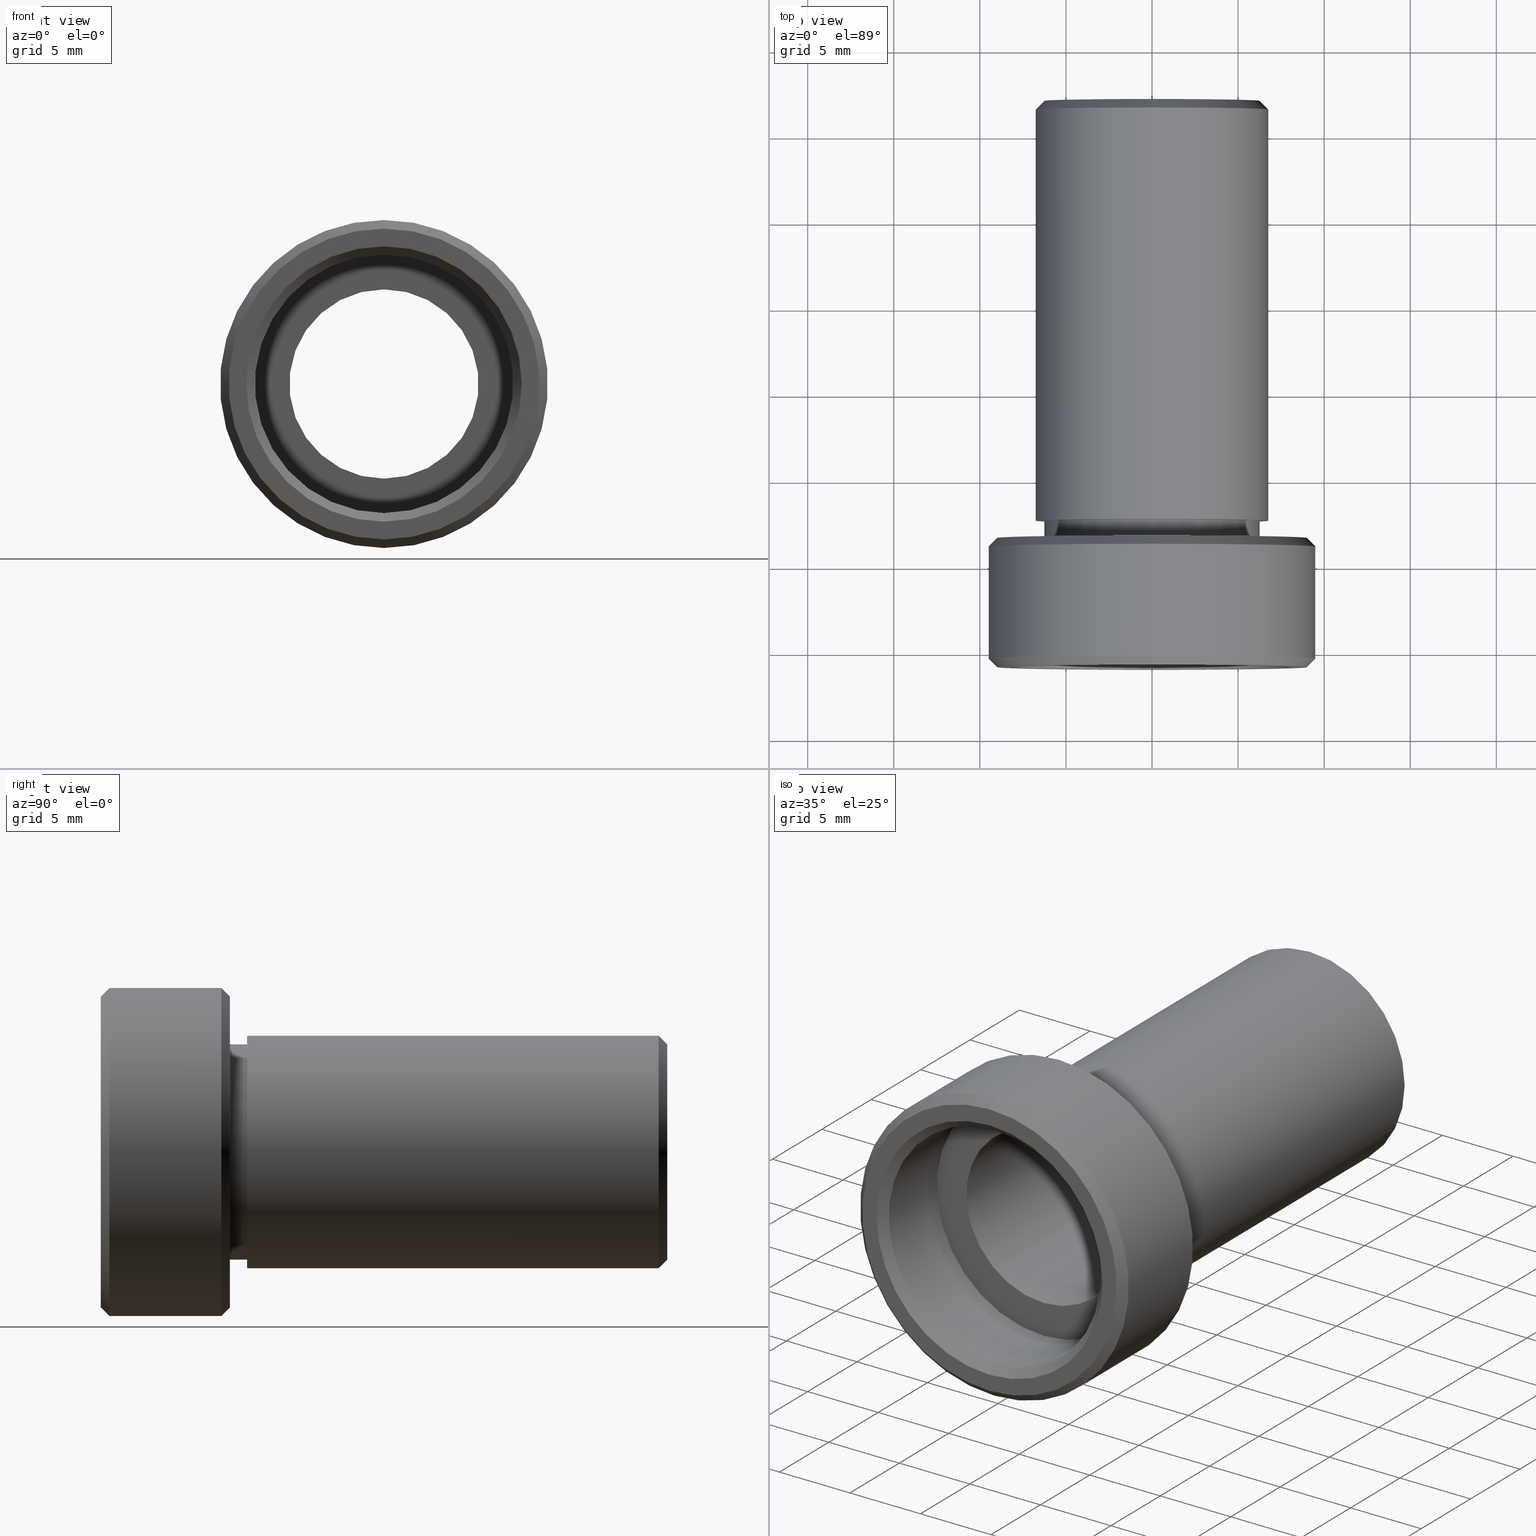
[diagram: canonical four-view strip — front | top / right | iso, engineering-drawing reading convention]
A machine part, canonical four-view strip (front | top / right | iso — engineering-drawing reading convention). The complete STEP part file that produces these views, byte-faithful:
ISO-10303-21;
HEADER;
FILE_DESCRIPTION (( 'STEP AP203' ),
    '1' );
FILE_NAME ('505006.STEP',
    '2019-09-12T03:42:32',
    ( '' ),
    ( '' ),
    'SwSTEP 2.0',
    'SolidWorks 2016',
    '' );
FILE_SCHEMA (( 'CONFIG_CONTROL_DESIGN' ));
ENDSEC;

DATA;
#1 = EDGE_CURVE ( 'NONE', #884, #872, #65, .T. ) ;
#2 = DIRECTION ( 'NONE',  ( 0.0000000000000000000, 0.0000000000000000000, 1.000000000000000000 ) ) ;
#3 = ORIENTED_EDGE ( 'NONE', *, *, #463, .F. ) ;
#4 = ORIENTED_EDGE ( 'NONE', *, *, #415, .F. ) ;
#5 = PRODUCT_RELATED_PRODUCT_CATEGORY ( 'detail', '', ( #268 ) ) ;
#6 = CARTESIAN_POINT ( 'NONE',  ( 0.0000000000000000000, -1.357145825433107900, 0.0000000000000000000 ) ) ;
#7 = AXIS2_PLACEMENT_3D ( 'NONE', #761, #831, #63 ) ;
#8 = LINE ( 'NONE', #227, #837 ) ;
#9 = DIRECTION ( 'NONE',  ( 0.0000000000000000000, 0.0000000000000000000, 1.000000000000000000 ) ) ;
#10 = ORIENTED_EDGE ( 'NONE', *, *, #406, .F. ) ;
#11 = CIRCLE ( 'NONE', #724, 6.250000000000000000 ) ;
#12 = EDGE_LOOP ( 'NONE', ( #23, #82, #508, #115 ) ) ;
#13 = FACE_BOUND ( 'NONE', #602, .T. ) ;
#14 = EDGE_CURVE ( 'NONE', #589, #431, #830, .T. ) ;
#15 = CC_DESIGN_PERSON_AND_ORGANIZATION_ASSIGNMENT ( #846, #378, ( #877 ) ) ;
#16 = DIRECTION ( 'NONE',  ( -0.0000000000000000000, 1.000000000000000000, 0.0000000000000000000 ) ) ;
#17 = ADVANCED_FACE ( 'NONE', ( #684 ), #497, .F. ) ;
#18 = CARTESIAN_POINT ( 'NONE',  ( 0.0000000000000000000, 1.642854174566894800, 0.0000000000000000000 ) ) ;
#19 = PERSON_AND_ORGANIZATION ( #398, #806 ) ;
#20 = DATE_AND_TIME ( #395, #49 ) ;
#21 = AXIS2_PLACEMENT_3D ( 'NONE', #619, #345, #470 ) ;
#22 = CARTESIAN_POINT ( 'NONE',  ( 0.0000000000000000000, 26.54285417456689400, 0.0000000000000000000 ) ) ;
#23 = ORIENTED_EDGE ( 'NONE', *, *, #795, .T. ) ;
#24 = VERTEX_POINT ( 'NONE', #853 ) ;
#25 = DIRECTION ( 'NONE',  ( 0.0000000000000000000, 0.0000000000000000000, 1.000000000000000000 ) ) ;
#26 = ADVANCED_FACE ( 'NONE', ( #284, #785 ), #414, .F. ) ;
#27 = FACE_OUTER_BOUND ( 'NONE', #546, .T. ) ;
#28 = CARTESIAN_POINT ( 'NONE',  ( 8.266365894244637300E-016, 44.59859774529311900, -6.750000000000002700 ) ) ;
#29 = DIRECTION ( 'NONE',  ( -0.0000000000000000000, 1.000000000000000000, -0.0000000000000000000 ) ) ;
#30 = AXIS2_PLACEMENT_3D ( 'NONE', #150, #695, #305 ) ;
#31 = APPROVAL_STATUS ( 'not_yet_approved' ) ;
#32 = CARTESIAN_POINT ( 'NONE',  ( 0.0000000000000000000, 2.642854174566895900, 6.250000000000007100 ) ) ;
#33 = DATE_AND_TIME ( #160, #332 ) ;
#34 = CARTESIAN_POINT ( 'NONE',  ( 0.0000000000000000000, 1.142854174566894300, 0.0000000000000000000 ) ) ;
#35 = EDGE_CURVE ( 'NONE', #680, #24, #460, .T. ) ;
#36 = VERTEX_POINT ( 'NONE', #77 ) ;
#37 = APPROVAL ( #31, 'δָ��' ) ;
#38 = LINE ( 'NONE', #720, #203 ) ;
#39 = APPROVAL_STATUS ( 'not_yet_approved' ) ;
#40 = EDGE_LOOP ( 'NONE', ( #650, #614 ) ) ;
#41 = ORIENTED_EDGE ( 'NONE', *, *, #611, .T. ) ;
#42 = ADVANCED_FACE ( 'NONE', ( #604 ), #85, .F. ) ;
#43 = DIRECTION ( 'NONE',  ( 0.0000000000000000000, 0.0000000000000000000, 1.000000000000000000 ) ) ;
#44 = DIRECTION ( 'NONE',  ( 0.0000000000000000000, 0.0000000000000000000, 1.000000000000000000 ) ) ;
#45 = AXIS2_PLACEMENT_3D ( 'NONE', #570, #856, #25 ) ;
#46 = DIRECTION ( 'NONE',  ( 0.0000000000000000000, 0.0000000000000000000, -1.000000000000000000 ) ) ;
#47 = DIRECTION ( 'NONE',  ( 0.0000000000000000000, 0.0000000000000000000, 1.000000000000000000 ) ) ;
#48 = LOCAL_TIME ( 11, 42, 32.00000000000000000, #711 ) ;
#49 = LOCAL_TIME ( 11, 42, 32.00000000000000000, #759 ) ;
#50 = DIRECTION ( 'NONE',  ( 0.0000000000000000000, 0.0000000000000000000, 1.000000000000000000 ) ) ;
#51 = EDGE_CURVE ( 'NONE', #277, #191, #776, .T. ) ;
#52 = VERTEX_POINT ( 'NONE', #367 ) ;
#53 = EDGE_LOOP ( 'NONE', ( #202, #772 ) ) ;
#54 = CIRCLE ( 'NONE', #551, 9.025000000000005700 ) ;
#55 = DIRECTION ( 'NONE',  ( -0.0000000000000000000, 1.000000000000000000, -0.0000000000000000000 ) ) ;
#56 = CARTESIAN_POINT ( 'NONE',  ( 0.0000000000000000000, 26.54285417456689400, 0.0000000000000000000 ) ) ;
#57 = APPROVAL ( #118, 'δָ��' ) ;
#58 = PERSON_AND_ORGANIZATION ( #398, #806 ) ;
#59 = CARTESIAN_POINT ( 'NONE',  ( 0.0000000000000000000, 2.642854174566895900, 6.750000000000004400 ) ) ;
#60 = ORIENTED_EDGE ( 'NONE', *, *, #707, .T. ) ;
#61 = VECTOR ( 'NONE', #842, 1000.000000000000000 ) ;
#62 = ORIENTED_EDGE ( 'NONE', *, *, #188, .T. ) ;
#63 = DIRECTION ( 'NONE',  ( 0.0000000000000000000, 0.0000000000000000000, 1.000000000000000000 ) ) ;
#64 = AXIS2_PLACEMENT_3D ( 'NONE', #891, #539, #685 ) ;
#65 = LINE ( 'NONE', #834, #405 ) ;
#66 = CARTESIAN_POINT ( 'NONE',  ( 6.735557395310448900E-016, -0.3571458254331069700, -5.500000000000005300 ) ) ;
#67 = AXIS2_PLACEMENT_3D ( 'NONE', #18, #288, #493 ) ;
#68 = CC_DESIGN_SECURITY_CLASSIFICATION ( #407, ( #877 ) ) ;
#69 = LINE ( 'NONE', #170, #333 ) ;
#70 = LOCAL_TIME ( 11, 42, 32.00000000000000000, #620 ) ;
#71 = CARTESIAN_POINT ( 'NONE',  ( 0.0000000000000000000, 27.04285417456689800, 0.0000000000000000000 ) ) ;
#72 = ORIENTED_EDGE ( 'NONE', *, *, #320, .T. ) ;
#73 = VERTEX_POINT ( 'NONE', #689 ) ;
#74 = EDGE_LOOP ( 'NONE', ( #797, #585, #895, #632 ) ) ;
#75 = DIRECTION ( 'NONE',  ( 0.0000000000000000000, 0.0000000000000000000, 1.000000000000000000 ) ) ;
#76 = AXIS2_PLACEMENT_3D ( 'NONE', #148, #768, #481 ) ;
#77 = CARTESIAN_POINT ( 'NONE',  ( 0.0000000000000000000, -5.357145825433104100, 9.525000000000007500 ) ) ;
#78 = DIRECTION ( 'NONE',  ( 0.0000000000000000000, 0.0000000000000000000, 1.000000000000000000 ) ) ;
#79 = AXIS2_PLACEMENT_3D ( 'NONE', #308, #370, #637 ) ;
#80 = LOCAL_TIME ( 11, 42, 32.00000000000000000, #553 ) ;
#81 = LINE ( 'NONE', #855, #417 ) ;
#82 = ORIENTED_EDGE ( 'NONE', *, *, #141, .T. ) ;
#83 = CIRCLE ( 'NONE', #618, 5.500000000000005300 ) ;
#84 = ORIENTED_EDGE ( 'NONE', *, *, #223, .F. ) ;
#85 = CYLINDRICAL_SURFACE ( 'NONE', #784, 7.500000000000007100 ) ;
#86 = AXIS2_PLACEMENT_3D ( 'NONE', #303, #480, #572 ) ;
#87 = CARTESIAN_POINT ( 'NONE',  ( 0.0000000000000000000, 44.59859774529311900, 0.0000000000000000000 ) ) ;
#88 = CC_DESIGN_PERSON_AND_ORGANIZATION_ASSIGNMENT ( #220, #533, ( #351 ) ) ;
#89 = DIRECTION ( 'NONE',  ( 8.659560562354925500E-017, -0.7071067811865482400, 0.7071067811865469100 ) ) ;
#90 = AXIS2_PLACEMENT_3D ( 'NONE', #479, #422, #75 ) ;
#91 = VECTOR ( 'NONE', #571, 1000.000000000000000 ) ;
#92 = DIRECTION ( 'NONE',  ( -0.0000000000000000000, 1.000000000000000000, -0.0000000000000000000 ) ) ;
#93 = EDGE_LOOP ( 'NONE', ( #262, #41 ) ) ;
#94 = FACE_OUTER_BOUND ( 'NONE', #630, .T. ) ;
#95 = DIRECTION ( 'NONE',  ( -0.0000000000000000000, 1.000000000000000000, -0.0000000000000000000 ) ) ;
#96 = CARTESIAN_POINT ( 'NONE',  ( 0.0000000000000000000, 44.59859774529311900, 9.525000000000005700 ) ) ;
#97 = EDGE_CURVE ( 'NONE', #36, #344, #809, .T. ) ;
#98 = CARTESIAN_POINT ( 'NONE',  ( 0.0000000000000000000, 26.54285417456689400, -6.750000000000000900 ) ) ;
#99 = DATE_AND_TIME ( #609, #465 ) ;
#100 = CC_DESIGN_PERSON_AND_ORGANIZATION_ASSIGNMENT ( #358, #529, ( #549 ) ) ;
#101 = CARTESIAN_POINT ( 'NONE',  ( 0.0000000000000000000, 44.59859774529311900, 0.0000000000000000000 ) ) ;
#102 = VERTEX_POINT ( 'NONE', #501 ) ;
#103 = FACE_OUTER_BOUND ( 'NONE', #753, .T. ) ;
#104 = ORIENTED_EDGE ( 'NONE', *, *, #760, .T. ) ;
#105 = VERTEX_POINT ( 'NONE', #646 ) ;
#106 = ADVANCED_FACE ( 'NONE', ( #486, #327 ), #158, .F. ) ;
#107 = APPLICATION_CONTEXT ( 'configuration controlled 3d designs of mechanical parts and assemblies' ) ;
#108 = AXIS2_PLACEMENT_3D ( 'NONE', #648, #92, #429 ) ;
#109 = APPROVAL_ROLE ( '' ) ;
#110 = DIRECTION ( 'NONE',  ( 0.0000000000000000000, 0.0000000000000000000, 1.000000000000000000 ) ) ;
#111 = ADVANCED_FACE ( 'NONE', ( #94 ), #876, .F. ) ;
#112 = CONICAL_SURFACE ( 'NONE', #139, 6.750000000000000900, 0.7853981633974447300 ) ;
#113 = CARTESIAN_POINT ( 'NONE',  ( 0.0000000000000000000, 1.642854174566894800, -9.025000000000005700 ) ) ;
#114 = EDGE_CURVE ( 'NONE', #589, #302, #413, .T. ) ;
#115 = ORIENTED_EDGE ( 'NONE', *, *, #133, .F. ) ;
#116 = APPROVAL ( #39, 'δָ��' ) ;
#117 = ORIENTED_EDGE ( 'NONE', *, *, #257, .T. ) ;
#118 = APPROVAL_STATUS ( 'not_yet_approved' ) ;
#119 = VERTEX_POINT ( 'NONE', #787 ) ;
#120 = ORIENTED_EDGE ( 'NONE', *, *, #51, .T. ) ;
#121 = CARTESIAN_POINT ( 'NONE',  ( 0.0000000000000000000, 26.54285417456689400, 5.500000000000005300 ) ) ;
#122 = AXIS2_PLACEMENT_3D ( 'NONE', #6, #844, #561 ) ;
#123 = APPROVAL_ROLE ( '' ) ;
#124 = APPROVAL_PERSON_ORGANIZATION ( #259, #537, #109 ) ;
#125 = CIRCLE ( 'NONE', #686, 9.525000000000003900 ) ;
#126 = COORDINATED_UNIVERSAL_TIME_OFFSET ( 8, 0, .AHEAD. ) ;
#127 = AXIS2_PLACEMENT_3D ( 'NONE', #134, #756, #2 ) ;
#128 = ORIENTED_EDGE ( 'NONE', *, *, #240, .T. ) ;
#129 = VECTOR ( 'NONE', #424, 1000.000000000000000 ) ;
#130 = APPROVAL_STATUS ( 'not_yet_approved' ) ;
#131 = VECTOR ( 'NONE', #442, 1000.000000000000000 ) ;
#132 = CARTESIAN_POINT ( 'NONE',  ( 1.135859906209170800E-015, -5.857145825433105000, -9.025000000000005700 ) ) ;
#133 = EDGE_CURVE ( 'NONE', #191, #225, #852, .T. ) ;
#134 = CARTESIAN_POINT ( 'NONE',  ( 0.0000000000000000000, 1.142854174566894300, 0.0000000000000000000 ) ) ;
#135 = CARTESIAN_POINT ( 'NONE',  ( 0.0000000000000000000, -1.357145825433107900, 0.0000000000000000000 ) ) ;
#136 = CIRCLE ( 'NONE', #738, 6.250000000000007100 ) ;
#137 = ORIENTED_EDGE ( 'NONE', *, *, #778, .T. ) ;
#138 = VERTEX_POINT ( 'NONE', #309 ) ;
#139 = AXIS2_PLACEMENT_3D ( 'NONE', #22, #719, #786 ) ;
#140 = ORIENTED_EDGE ( 'NONE', *, *, #1, .F. ) ;
#141 = EDGE_CURVE ( 'NONE', #277, #496, #590, .T. ) ;
#142 = CARTESIAN_POINT ( 'NONE',  ( 0.0000000000000000000, -5.357145825433104100, -7.500000000000007100 ) ) ;
#143 = CARTESIAN_POINT ( 'NONE',  ( 0.0000000000000000000, -5.357145825433104100, 0.0000000000000000000 ) ) ;
#144 = CARTESIAN_POINT ( 'NONE',  ( 0.0000000000000000000, 1.142854174566894300, 0.0000000000000000000 ) ) ;
#145 = CIRCLE ( 'NONE', #64, 9.025000000000005700 ) ;
#146 = DIRECTION ( 'NONE',  ( 0.0000000000000000000, 0.7071067811865475700, 0.7071067811865474600 ) ) ;
#147 = CC_DESIGN_APPROVAL ( #562, ( #549 ) ) ;
#148 = CARTESIAN_POINT ( 'NONE',  ( 0.0000000000000000000, 2.642854174566895900, 0.0000000000000000000 ) ) ;
#149 = AXIS2_PLACEMENT_3D ( 'NONE', #491, #569, #168 ) ;
#150 = CARTESIAN_POINT ( 'NONE',  ( 0.0000000000000000000, -5.357145825433104100, 0.0000000000000000000 ) ) ;
#151 = CALENDAR_DATE ( 2019, 12, 9 ) ;
#152 = ORIENTED_EDGE ( 'NONE', *, *, #97, .T. ) ;
#153 = CARTESIAN_POINT ( 'NONE',  ( 0.0000000000000000000, 1.642854174566894800, 0.0000000000000000000 ) ) ;
#154 = LINE ( 'NONE', #550, #383 ) ;
#155 = ORIENTED_EDGE ( 'NONE', *, *, #133, .T. ) ;
#156 = FACE_OUTER_BOUND ( 'NONE', #892, .T. ) ;
#157 = EDGE_CURVE ( 'NONE', #301, #404, #54, .T. ) ;
#158 = PLANE ( 'NONE',  #159 ) ;
#159 = AXIS2_PLACEMENT_3D ( 'NONE', #286, #217, #306 ) ;
#160 = CALENDAR_DATE ( 2019, 12, 9 ) ;
#161 = PLANE ( 'NONE',  #79 ) ;
#162 = COORDINATED_UNIVERSAL_TIME_OFFSET ( 8, 0, .AHEAD. ) ;
#163 = CARTESIAN_POINT ( 'NONE',  ( 0.0000000000000000000, 26.54285417456689400, 0.0000000000000000000 ) ) ;
#164 = EDGE_LOOP ( 'NONE', ( #860, #62, #290, #190 ) ) ;
#165 = ORIENTED_EDGE ( 'NONE', *, *, #114, .F. ) ;
#166 = ADVANCED_FACE ( 'NONE', ( #156 ), #205, .F. ) ;
#167 = VECTOR ( 'NONE', #512, 1000.000000000000000 ) ;
#168 = DIRECTION ( 'NONE',  ( 0.0000000000000000000, 0.0000000000000000000, 1.000000000000000000 ) ) ;
#169 = DIRECTION ( 'NONE',  ( -0.0000000000000000000, 1.000000000000000000, -0.0000000000000000000 ) ) ;
#170 = CARTESIAN_POINT ( 'NONE',  ( 0.0000000000000000000, -5.857145825433105000, 9.025000000000005700 ) ) ;
#171 = CARTESIAN_POINT ( 'NONE',  ( 0.0000000000000000000, 1.642854174566894800, 0.0000000000000000000 ) ) ;
#172 = PERSON_AND_ORGANIZATION_ROLE ( 'design_supplier' ) ;
#173 = DIRECTION ( 'NONE',  ( -0.0000000000000000000, 1.000000000000000000, -0.0000000000000000000 ) ) ;
#174 = EDGE_CURVE ( 'NONE', #24, #680, #732, .T. ) ;
#175 = APPROVAL_DATE_TIME ( #360, #57 ) ;
#176 = CC_DESIGN_DATE_AND_TIME_ASSIGNMENT ( #20, #663, ( #750 ) ) ;
#177 = APPLICATION_CONTEXT ( 'configuration controlled 3d designs of mechanical parts and assemblies' ) ;
#178 = ORIENTED_EDGE ( 'NONE', *, *, #528, .F. ) ;
#179 = DIRECTION ( 'NONE',  ( -0.0000000000000000000, 1.000000000000000000, -0.0000000000000000000 ) ) ;
#180 = FACE_OUTER_BOUND ( 'NONE', #817, .T. ) ;
#181 = EDGE_LOOP ( 'NONE', ( #782, #346, #557, #731 ) ) ;
#182 = ORIENTED_EDGE ( 'NONE', *, *, #299, .T. ) ;
#183 = APPLICATION_PROTOCOL_DEFINITION ( 'international standard', 'config_control_design', 1994, #177 ) ;
#184 = ADVANCED_FACE ( 'NONE', ( #316 ), #567, .F. ) ;
#185 = DIRECTION ( 'NONE',  ( 0.0000000000000000000, -1.000000000000000000, 0.0000000000000000000 ) ) ;
#186 = DATE_AND_TIME ( #233, #483 ) ;
#187 = CARTESIAN_POINT ( 'NONE',  ( 0.0000000000000000000, 1.142854174566894300, 0.0000000000000000000 ) ) ;
#188 = EDGE_CURVE ( 'NONE', #24, #751, #863, .T. ) ;
#189 = PERSON_AND_ORGANIZATION ( #398, #806 ) ;
#190 = ORIENTED_EDGE ( 'NONE', *, *, #573, .F. ) ;
#191 = VERTEX_POINT ( 'NONE', #873 ) ;
#192 = PRODUCT_DEFINITION_SHAPE ( 'NONE', 'NONE',  #391 ) ;
#193 = CIRCLE ( 'NONE', #703, 9.525000000000007500 ) ;
#194 = CARTESIAN_POINT ( 'NONE',  ( 0.0000000000000000000, 1.142854174566894300, -9.525000000000003900 ) ) ;
#195 = DIRECTION ( 'NONE',  ( -0.0000000000000000000, 1.000000000000000000, -0.0000000000000000000 ) ) ;
#196 = CARTESIAN_POINT ( 'NONE',  ( 0.0000000000000000000, -5.857145825433105000, 9.025000000000005700 ) ) ;
#197 = PERSON_AND_ORGANIZATION ( #398, #806 ) ;
#198 = CIRCLE ( 'NONE', #218, 6.750000000000000900 ) ;
#199 = COORDINATED_UNIVERSAL_TIME_OFFSET ( 8, 0, .AHEAD. ) ;
#200 = PERSON_AND_ORGANIZATION_ROLE ( 'creator' ) ;
#201 = AXIS2_PLACEMENT_3D ( 'NONE', #101, #248, #43 ) ;
#202 = ORIENTED_EDGE ( 'NONE', *, *, #593, .T. ) ;
#203 = VECTOR ( 'NONE', #313, 1000.000000000000000 ) ;
#204 = ORIENTED_EDGE ( 'NONE', *, *, #696, .T. ) ;
#205 = CONICAL_SURFACE ( 'NONE', #443, 7.500000000000007100, 0.7853981633974473900 ) ;
#206 = EDGE_CURVE ( 'NONE', #872, #474, #634, .T. ) ;
#207 = CARTESIAN_POINT ( 'NONE',  ( 7.500000000000007100, -1.357145825433105700, 0.0000000000000000000 ) ) ;
#208 = CC_DESIGN_APPROVAL ( #37, ( #351 ) ) ;
#209 = DIRECTION ( 'NONE',  ( -0.0000000000000000000, 1.000000000000000000, -0.0000000000000000000 ) ) ;
#210 = APPROVAL_PERSON_ORGANIZATION ( #532, #116, #255 ) ;
#211 = APPROVAL_PERSON_ORGANIZATION ( #504, #37, #273 ) ;
#212 = ORIENTED_EDGE ( 'NONE', *, *, #811, .T. ) ;
#213 = ORIENTED_EDGE ( 'NONE', *, *, #747, .T. ) ;
#214 = CARTESIAN_POINT ( 'NONE',  ( 0.0000000000000000000, -5.857145825433105000, -8.000000000000007100 ) ) ;
#215 = AXIS2_PLACEMENT_3D ( 'NONE', #256, #805, #464 ) ;
#216 = CIRCLE ( 'NONE', #340, 7.500000000000007100 ) ;
#217 = DIRECTION ( 'NONE',  ( 0.0000000000000000000, -1.000000000000000000, 0.0000000000000000000 ) ) ;
#218 = AXIS2_PLACEMENT_3D ( 'NONE', #311, #95, #790 ) ;
#219 = CARTESIAN_POINT ( 'NONE',  ( 6.750000000000004400, 2.642854174566894500, 0.0000000000000000000 ) ) ;
#220 = PERSON_AND_ORGANIZATION ( #398, #806 ) ;
#221 = DATE_AND_TIME ( #780, #441 ) ;
#222 = ORIENTED_EDGE ( 'NONE', *, *, #744, .F. ) ;
#223 = EDGE_CURVE ( 'NONE', #432, #704, #294, .T. ) ;
#224 = CONICAL_SURFACE ( 'NONE', #315, 9.525000000000003900, 0.7853981633974466100 ) ;
#225 = VERTEX_POINT ( 'NONE', #32 ) ;
#226 = VECTOR ( 'NONE', #794, 1000.000000000000000 ) ;
#227 = CARTESIAN_POINT ( 'NONE',  ( 0.0000000000000000000, 27.04285417456689400, 6.000000000000005300 ) ) ;
#228 = CARTESIAN_POINT ( 'NONE',  ( 9.184850993605157800E-016, -1.357145825433107900, -7.500000000000007100 ) ) ;
#229 = DIRECTION ( 'NONE',  ( -0.0000000000000000000, 1.000000000000000000, -0.0000000000000000000 ) ) ;
#230 = AXIS2_PLACEMENT_3D ( 'NONE', #436, #375, #425 ) ;
#231 = CALENDAR_DATE ( 2019, 12, 9 ) ;
#232 = CARTESIAN_POINT ( 'NONE',  ( 0.0000000000000000000, 44.59859774529311900, 0.0000000000000000000 ) ) ;
#233 = CALENDAR_DATE ( 2019, 12, 9 ) ;
#234 = PERSON_AND_ORGANIZATION ( #398, #806 ) ;
#235 = DIRECTION ( 'NONE',  ( -0.0000000000000000000, 1.000000000000000000, -0.0000000000000000000 ) ) ;
#236 = ORIENTED_EDGE ( 'NONE', *, *, #477, .T. ) ;
#237 = ORIENTED_EDGE ( 'NONE', *, *, #789, .F. ) ;
#238 = DIRECTION ( 'NONE',  ( 0.0000000000000000000, 0.0000000000000000000, 1.000000000000000000 ) ) ;
#239 = VECTOR ( 'NONE', #229, 1000.000000000000000 ) ;
#240 = EDGE_CURVE ( 'NONE', #566, #704, #366, .T. ) ;
#241 = CARTESIAN_POINT ( 'NONE',  ( 0.0000000000000000000, 44.59859774529311900, 0.0000000000000000000 ) ) ;
#242 = CARTESIAN_POINT ( 'NONE',  ( 1.166476076187854400E-015, 1.142854174566894300, 9.525000000000003900 ) ) ;
#243 = PERSON_AND_ORGANIZATION_ROLE ( 'design_owner' ) ;
#244 = LINE ( 'NONE', #369, #726 ) ;
#245 = PERSON_AND_ORGANIZATION ( #398, #806 ) ;
#246 = ORIENTED_EDGE ( 'NONE', *, *, #607, .T. ) ;
#247 = LINE ( 'NONE', #194, #742 ) ;
#248 = DIRECTION ( 'NONE',  ( -0.0000000000000000000, 1.000000000000000000, -0.0000000000000000000 ) ) ;
#249 = ORIENTED_EDGE ( 'NONE', *, *, #188, .F. ) ;
#250 = EDGE_LOOP ( 'NONE', ( #263, #396 ) ) ;
#251 = DIRECTION ( 'NONE',  ( 0.0000000000000000000, 0.0000000000000000000, 1.000000000000000000 ) ) ;
#252 = ADVANCED_FACE ( 'NONE', ( #874, #354 ), #509, .F. ) ;
#253 = DIRECTION ( 'NONE',  ( 0.0000000000000000000, 0.0000000000000000000, 1.000000000000000000 ) ) ;
#254 = ADVANCED_FACE ( 'NONE', ( #765 ), #538, .T. ) ;
#255 = APPROVAL_ROLE ( '' ) ;
#256 = CARTESIAN_POINT ( 'NONE',  ( 0.0000000000000000000, -5.857145825433105000, 0.0000000000000000000 ) ) ;
#257 = EDGE_CURVE ( 'NONE', #404, #344, #631, .T. ) ;
#258 = LINE ( 'NONE', #28, #91 ) ;
#259 = PERSON_AND_ORGANIZATION ( #398, #806 ) ;
#260 = PERSON_AND_ORGANIZATION_ROLE ( 'creator' ) ;
#261 = CARTESIAN_POINT ( 'NONE',  ( 0.0000000000000000000, -1.357145825433107900, 0.0000000000000000000 ) ) ;
#262 = ORIENTED_EDGE ( 'NONE', *, *, #287, .T. ) ;
#263 = ORIENTED_EDGE ( 'NONE', *, *, #795, .F. ) ;
#264 = ORIENTED_EDGE ( 'NONE', *, *, #621, .F. ) ;
#265 = DIRECTION ( 'NONE',  ( -0.0000000000000000000, 1.000000000000000000, -0.0000000000000000000 ) ) ;
#266 = CC_DESIGN_SECURITY_CLASSIFICATION ( #549, ( #351 ) ) ;
#267 = DIRECTION ( 'NONE',  ( 0.0000000000000000000, -0.7071067811865487900, -0.7071067811865463500 ) ) ;
#268 = PRODUCT ( '505006', '505006', '', ( #388 ) ) ;
#269 = CARTESIAN_POINT ( 'NONE',  ( 1.166476076187854400E-015, 1.142854174566894300, -9.525000000000003900 ) ) ;
#270 = AXIS2_PLACEMENT_3D ( 'NONE', #654, #319, #44 ) ;
#271 = FACE_OUTER_BOUND ( 'NONE', #714, .T. ) ;
#272 = ORIENTED_EDGE ( 'NONE', *, *, #573, .T. ) ;
#273 = APPROVAL_ROLE ( '' ) ;
#274 = FACE_OUTER_BOUND ( 'NONE', #793, .T. ) ;
#275 = ORIENTED_EDGE ( 'NONE', *, *, #744, .T. ) ;
#276 = CARTESIAN_POINT ( 'NONE',  ( 7.347880794884125700E-016, 27.04285417456689400, -6.000000000000005300 ) ) ;
#277 = VERTEX_POINT ( 'NONE', #722 ) ;
#278 = DIRECTION ( 'NONE',  ( -0.0000000000000000000, 1.000000000000000000, -0.0000000000000000000 ) ) ;
#279 = DIRECTION ( 'NONE',  ( 0.0000000000000000000, -1.000000000000000000, 0.0000000000000000000 ) ) ;
#280 = AXIS2_PLACEMENT_3D ( 'NONE', #641, #705, #574 ) ;
#281 = ORIENTED_EDGE ( 'NONE', *, *, #451, .T. ) ;
#282 = ORIENTED_EDGE ( 'NONE', *, *, #544, .F. ) ;
#283 = ORIENTED_EDGE ( 'NONE', *, *, #451, .F. ) ;
#284 = FACE_OUTER_BOUND ( 'NONE', #434, .T. ) ;
#285 = DIRECTION ( 'NONE',  ( -0.0000000000000000000, 1.000000000000000000, -0.0000000000000000000 ) ) ;
#286 = CARTESIAN_POINT ( 'NONE',  ( 6.250000000000007100, 1.642854174566893900, 0.0000000000000000000 ) ) ;
#287 = EDGE_CURVE ( 'NONE', #692, #73, #613, .T. ) ;
#288 = DIRECTION ( 'NONE',  ( -0.0000000000000000000, 1.000000000000000000, -0.0000000000000000000 ) ) ;
#289 = CARTESIAN_POINT ( 'NONE',  ( 0.0000000000000000000, 27.04285417456689400, 0.0000000000000000000 ) ) ;
#290 = ORIENTED_EDGE ( 'NONE', *, *, #528, .T. ) ;
#291 = CARTESIAN_POINT ( 'NONE',  ( 0.0000000000000000000, 44.59859774529311900, 0.0000000000000000000 ) ) ;
#292 = PRODUCT_RELATED_PRODUCT_CATEGORY ( 'detail', '', ( #676 ) ) ;
#293 = CIRCLE ( 'NONE', #122, 7.500000000000007100 ) ;
#294 = CIRCLE ( 'NONE', #822, 6.750000000000000900 ) ;
#295 = CARTESIAN_POINT ( 'NONE',  ( 0.0000000000000000000, -5.857145825433105000, 0.0000000000000000000 ) ) ;
#296 = DIRECTION ( 'NONE',  ( 0.0000000000000000000, 0.0000000000000000000, 1.000000000000000000 ) ) ;
#297 = DIRECTION ( 'NONE',  ( 0.0000000000000000000, -0.7071067811865500200, -0.7071067811865450200 ) ) ;
#298 = ORIENTED_EDGE ( 'NONE', *, *, #636, .F. ) ;
#299 = EDGE_CURVE ( 'NONE', #52, #411, #38, .T. ) ;
#300 = EDGE_LOOP ( 'NONE', ( #365, #60, #152, #519 ) ) ;
#301 = VERTEX_POINT ( 'NONE', #113 ) ;
#302 = VERTEX_POINT ( 'NONE', #746 ) ;
#303 = CARTESIAN_POINT ( 'NONE',  ( 0.0000000000000000000, -0.3571458254331069700, 0.0000000000000000000 ) ) ;
#304 = ADVANCED_FACE ( 'NONE', ( #103 ), #419, .T. ) ;
#305 = DIRECTION ( 'NONE',  ( 0.0000000000000000000, 0.0000000000000000000, 1.000000000000000000 ) ) ;
#306 = DIRECTION ( 'NONE',  ( 0.0000000000000000000, -0.0000000000000000000, -1.000000000000000000 ) ) ;
#307 = CC_DESIGN_APPROVAL ( #57, ( #391 ) ) ;
#308 = CARTESIAN_POINT ( 'NONE',  ( 6.000000000000005300, 27.04285417456689400, 0.0000000000000000000 ) ) ;
#309 = CARTESIAN_POINT ( 'NONE',  ( 0.0000000000000000000, 27.04285417456689800, -6.250000000000000000 ) ) ;
#310 = CALENDAR_DATE ( 2019, 12, 9 ) ;
#311 = CARTESIAN_POINT ( 'NONE',  ( 0.0000000000000000000, 26.54285417456689400, 0.0000000000000000000 ) ) ;
#312 = EDGE_LOOP ( 'NONE', ( #386, #476 ) ) ;
#313 = DIRECTION ( 'NONE',  ( -0.0000000000000000000, 1.000000000000000000, -0.0000000000000000000 ) ) ;
#314 = ADVANCED_FACE ( 'NONE', ( #838 ), #752, .F. ) ;
#315 = AXIS2_PLACEMENT_3D ( 'NONE', #187, #606, #527 ) ;
#316 = FACE_OUTER_BOUND ( 'NONE', #475, .T. ) ;
#317 = CARTESIAN_POINT ( 'NONE',  ( 0.0000000000000000000, -5.857145825433105000, 0.0000000000000000000 ) ) ;
#318 = DIRECTION ( 'NONE',  ( 0.0000000000000000000, 0.0000000000000000000, 1.000000000000000000 ) ) ;
#319 = DIRECTION ( 'NONE',  ( -0.0000000000000000000, 1.000000000000000000, -0.0000000000000000000 ) ) ;
#320 = EDGE_CURVE ( 'NONE', #225, #496, #374, .T. ) ;
#321 = APPROVAL_ROLE ( '' ) ;
#322 = CYLINDRICAL_SURFACE ( 'NONE', #633, 6.250000000000007100 ) ;
#323 = DIRECTION ( 'NONE',  ( 0.0000000000000000000, 0.0000000000000000000, -1.000000000000000000 ) ) ;
#324 = ADVANCED_FACE ( 'NONE', ( #578 ), #796, .T. ) ;
#325 = ORIENTED_EDGE ( 'NONE', *, *, #361, .F. ) ;
#326 = ORIENTED_EDGE ( 'NONE', *, *, #415, .T. ) ;
#327 = FACE_OUTER_BOUND ( 'NONE', #827, .T. ) ;
#328 = AXIS2_PLACEMENT_3D ( 'NONE', #261, #596, #813 ) ;
#329 = PERSON_AND_ORGANIZATION_ROLE ( 'creator' ) ;
#330 = DIRECTION ( 'NONE',  ( -0.0000000000000000000, 1.000000000000000000, -0.0000000000000000000 ) ) ;
#331 = EDGE_CURVE ( 'NONE', #894, #884, #730, .T. ) ;
#332 = LOCAL_TIME ( 11, 42, 32.00000000000000000, #349 ) ;
#333 = VECTOR ( 'NONE', #725, 1000.000000000000000 ) ;
#334 = CARTESIAN_POINT ( 'NONE',  ( 7.960204194457796500E-016, 27.04285417456689800, 6.250000000000000000 ) ) ;
#335 = ORIENTED_EDGE ( 'NONE', *, *, #35, .T. ) ;
#336 = FACE_OUTER_BOUND ( 'NONE', #74, .T. ) ;
#337 = DIRECTION ( 'NONE',  ( -0.0000000000000000000, 1.000000000000000000, -0.0000000000000000000 ) ) ;
#338 = AXIS2_PLACEMENT_3D ( 'NONE', #668, #526, #449 ) ;
#339 = DIRECTION ( 'NONE',  ( 0.0000000000000000000, 0.0000000000000000000, -1.000000000000000000 ) ) ;
#340 = AXIS2_PLACEMENT_3D ( 'NONE', #135, #408, #540 ) ;
#341 = FACE_OUTER_BOUND ( 'NONE', #300, .T. ) ;
#342 = EDGE_LOOP ( 'NONE', ( #728, #420, #104, #140 ) ) ;
#343 = CIRCLE ( 'NONE', #645, 8.000000000000007100 ) ;
#344 = VERTEX_POINT ( 'NONE', #670 ) ;
#345 = DIRECTION ( 'NONE',  ( -0.0000000000000000000, 1.000000000000000000, -0.0000000000000000000 ) ) ;
#346 = ORIENTED_EDGE ( 'NONE', *, *, #836, .T. ) ;
#347 = CARTESIAN_POINT ( 'NONE',  ( 0.0000000000000000000, -5.357145825433104100, 0.0000000000000000000 ) ) ;
#348 = CARTESIAN_POINT ( 'NONE',  ( 7.600000000000005000, -0.3571458254331055200, 0.0000000000000000000 ) ) ;
#349 = COORDINATED_UNIVERSAL_TIME_OFFSET ( 8, 0, .AHEAD. ) ;
#350 = PLANE ( 'NONE',  #887 ) ;
#351 = PRODUCT_DEFINITION_FORMATION_WITH_SPECIFIED_SOURCE ( '�κ�', '', #268, .NOT_KNOWN. ) ;
#352 = EDGE_LOOP ( 'NONE', ( #763, #667, #444, #640 ) ) ;
#353 = VERTEX_POINT ( 'NONE', #334 ) ;
#354 = FACE_BOUND ( 'NONE', #93, .T. ) ;
#355 = DIRECTION ( 'NONE',  ( -0.0000000000000000000, 1.000000000000000000, -0.0000000000000000000 ) ) ;
#356 = AXIS2_PLACEMENT_3D ( 'NONE', #289, #699, #296 ) ;
#357 = DIRECTION ( 'NONE',  ( -0.0000000000000000000, 1.000000000000000000, -0.0000000000000000000 ) ) ;
#358 = PERSON_AND_ORGANIZATION ( #398, #806 ) ;
#359 = CYLINDRICAL_SURFACE ( 'NONE', #201, 6.750000000000002700 ) ;
#360 = DATE_AND_TIME ( #542, #727 ) ;
#361 = EDGE_CURVE ( 'NONE', #402, #302, #83, .T. ) ;
#362 = ORIENTED_EDGE ( 'NONE', *, *, #679, .T. ) ;
#363 = CC_DESIGN_PERSON_AND_ORGANIZATION_ASSIGNMENT ( #584, #439, ( #407 ) ) ;
#364 = CONICAL_SURFACE ( 'NONE', #881, 6.750000000000000900, 0.7853981633974447300 ) ;
#365 = ORIENTED_EDGE ( 'NONE', *, *, #299, .F. ) ;
#366 = LINE ( 'NONE', #866, #167 ) ;
#367 = CARTESIAN_POINT ( 'NONE',  ( 1.166476076187854800E-015, -5.357145825433104100, -9.525000000000007500 ) ) ;
#368 = AXIS2_PLACEMENT_3D ( 'NONE', #500, #235, #498 ) ;
#369 = CARTESIAN_POINT ( 'NONE',  ( 9.184850993605157800E-016, -5.357145825433104100, 7.500000000000007100 ) ) ;
#370 = DIRECTION ( 'NONE',  ( 0.0000000000000000000, -1.000000000000000000, 0.0000000000000000000 ) ) ;
#371 = EDGE_CURVE ( 'NONE', #302, #402, #446, .T. ) ;
#372 = ORIENTED_EDGE ( 'NONE', *, *, #174, .T. ) ;
#373 = EDGE_LOOP ( 'NONE', ( #665, #298, #691, #448 ) ) ;
#374 = CIRCLE ( 'NONE', #423, 6.250000000000007100 ) ;
#375 = DIRECTION ( 'NONE',  ( -0.0000000000000000000, 1.000000000000000000, -0.0000000000000000000 ) ) ;
#376 = DIRECTION ( 'NONE',  ( 8.659560562354918100E-017, -0.7071067811865487900, 0.7071067811865463500 ) ) ;
#377 = CC_DESIGN_PERSON_AND_ORGANIZATION_ASSIGNMENT ( #58, #329, ( #391 ) ) ;
#378 = PERSON_AND_ORGANIZATION_ROLE ( 'creator' ) ;
#379 = ADVANCED_FACE ( 'NONE', ( #274 ), #774, .F. ) ;
#380 = DATE_AND_TIME ( #310, #48 ) ;
#381 = ORIENTED_EDGE ( 'NONE', *, *, #390, .F. ) ;
#382 = DIRECTION ( 'NONE',  ( 0.0000000000000000000, -1.000000000000000000, 0.0000000000000000000 ) ) ;
#383 = VECTOR ( 'NONE', #754, 1000.000000000000000 ) ;
#384 = ORIENTED_EDGE ( 'NONE', *, *, #371, .F. ) ;
#385 = AXIS2_PLACEMENT_3D ( 'NONE', #457, #55, #879 ) ;
#386 = ORIENTED_EDGE ( 'NONE', *, *, #854, .F. ) ;
#387 = ADVANCED_FACE ( 'NONE', ( #180 ), #224, .T. ) ;
#388 = MECHANICAL_CONTEXT ( 'NONE', #107, 'mechanical' ) ;
#389 = CARTESIAN_POINT ( 'NONE',  ( 0.0000000000000000000, 26.54285417456689400, 0.0000000000000000000 ) ) ;
#390 = EDGE_CURVE ( 'NONE', #466, #119, #893, .T. ) ;
#391 = PRODUCT_DEFINITION ( 'δ֪', '', #351, #610 ) ;
#392 = DATE_TIME_ROLE ( 'creation_date' ) ;
#393 = PERSON_AND_ORGANIZATION ( #398, #806 ) ;
#394 = CARTESIAN_POINT ( 'NONE',  ( 0.0000000000000000000, 2.642854174566895900, 0.0000000000000000000 ) ) ;
#395 = CALENDAR_DATE ( 2019, 12, 9 ) ;
#396 = ORIENTED_EDGE ( 'NONE', *, *, #51, .F. ) ;
#397 = EDGE_LOOP ( 'NONE', ( #563, #120, #155, #4 ) ) ;
#398 = PERSON ( 'δָ��', 'δָ��', 'δָ��', ('δָ��'), ('δָ��'), ('δָ��') ) ;
#399 = CONICAL_SURFACE ( 'NONE', #601, 7.500000000000007100, 0.7853981633974473900 ) ;
#400 = DIRECTION ( 'NONE',  ( 0.0000000000000000000, 0.0000000000000000000, 1.000000000000000000 ) ) ;
#401 = AXIS2_PLACEMENT_3D ( 'NONE', #317, #591, #253 ) ;
#402 = VERTEX_POINT ( 'NONE', #121 ) ;
#403 = FACE_BOUND ( 'NONE', #556, .T. ) ;
#404 = VERTEX_POINT ( 'NONE', #600 ) ;
#405 = VECTOR ( 'NONE', #503, 1000.000000000000000 ) ;
#406 = EDGE_CURVE ( 'NONE', #301, #411, #247, .T. ) ;
#407 = SECURITY_CLASSIFICATION ( '', '', #597 ) ;
#408 = DIRECTION ( 'NONE',  ( -0.0000000000000000000, 1.000000000000000000, -0.0000000000000000000 ) ) ;
#409 = AXIS2_PLACEMENT_3D ( 'NONE', #713, #858, #437 ) ;
#410 = APPROVAL_PERSON_ORGANIZATION ( #599, #718, #321 ) ;
#411 = VERTEX_POINT ( 'NONE', #269 ) ;
#412 = ORIENTED_EDGE ( 'NONE', *, *, #611, .F. ) ;
#413 = LINE ( 'NONE', #706, #239 ) ;
#414 = PLANE ( 'NONE',  #505 ) ;
#415 = EDGE_CURVE ( 'NONE', #496, #225, #588, .T. ) ;
#416 = DATE_AND_TIME ( #151, #80 ) ;
#417 = VECTOR ( 'NONE', #862, 1000.000000000000000 ) ;
#418 = DIRECTION ( 'NONE',  ( -0.0000000000000000000, 1.000000000000000000, 0.0000000000000000000 ) ) ;
#419 = CONICAL_SURFACE ( 'NONE', #803, 9.025000000000005700, 0.7853981633974500600 ) ;
#420 = ORIENTED_EDGE ( 'NONE', *, *, #463, .T. ) ;
#421 = ORIENTED_EDGE ( 'NONE', *, *, #157, .T. ) ;
#422 = DIRECTION ( 'NONE',  ( -0.0000000000000000000, 1.000000000000000000, -0.0000000000000000000 ) ) ;
#423 = AXIS2_PLACEMENT_3D ( 'NONE', #737, #330, #810 ) ;
#424 = DIRECTION ( 'NONE',  ( 8.659560562354902000E-017, -0.7071067811865500200, 0.7071067811865450200 ) ) ;
#425 = DIRECTION ( 'NONE',  ( 0.0000000000000000000, 0.0000000000000000000, 1.000000000000000000 ) ) ;
#426 = CIRCLE ( 'NONE', #280, 7.600000000000005000 ) ;
#427 = DIRECTION ( 'NONE',  ( 0.0000000000000000000, 0.0000000000000000000, 1.000000000000000000 ) ) ;
#428 = EDGE_CURVE ( 'NONE', #411, #344, #701, .T. ) ;
#429 = DIRECTION ( 'NONE',  ( 0.0000000000000000000, 0.0000000000000000000, 1.000000000000000000 ) ) ;
#430 = AXIS2_PLACEMENT_3D ( 'NONE', #453, #318, #869 ) ;
#431 = VERTEX_POINT ( 'NONE', #524 ) ;
#432 = VERTEX_POINT ( 'NONE', #880 ) ;
#433 = DIRECTION ( 'NONE',  ( -0.0000000000000000000, 1.000000000000000000, -0.0000000000000000000 ) ) ;
#434 = EDGE_LOOP ( 'NONE', ( #875, #576 ) ) ;
#435 = ADVANCED_FACE ( 'NONE', ( #403, #565 ), #740, .F. ) ;
#436 = CARTESIAN_POINT ( 'NONE',  ( 0.0000000000000000000, 2.642854174566895900, 0.0000000000000000000 ) ) ;
#437 = DIRECTION ( 'NONE',  ( 0.0000000000000000000, 0.0000000000000000000, 1.000000000000000000 ) ) ;
#438 = DIRECTION ( 'NONE',  ( -0.0000000000000000000, 1.000000000000000000, -0.0000000000000000000 ) ) ;
#439 = PERSON_AND_ORGANIZATION_ROLE ( 'classification_officer' ) ;
#440 = FACE_OUTER_BOUND ( 'NONE', #12, .T. ) ;
#441 = LOCAL_TIME ( 11, 42, 32.00000000000000000, #639 ) ;
#442 = DIRECTION ( 'NONE',  ( -0.0000000000000000000, 1.000000000000000000, -0.0000000000000000000 ) ) ;
#443 = AXIS2_PLACEMENT_3D ( 'NONE', #579, #382, #323 ) ;
#444 = ORIENTED_EDGE ( 'NONE', *, *, #406, .T. ) ;
#445 = ADVANCED_FACE ( 'NONE', ( #520 ), #886, .T. ) ;
#446 = CIRCLE ( 'NONE', #487, 5.500000000000005300 ) ;
#447 = ORIENTED_EDGE ( 'NONE', *, *, #696, .F. ) ;
#448 = ORIENTED_EDGE ( 'NONE', *, *, #223, .T. ) ;
#449 = DIRECTION ( 'NONE',  ( 1.000000000000000000, 0.0000000000000000000, 0.0000000000000000000 ) ) ;
#450 = CARTESIAN_POINT ( 'NONE',  ( 9.184850993605157800E-016, 44.59859774529311900, -7.500000000000007100 ) ) ;
#451 = EDGE_CURVE ( 'NONE', #404, #301, #145, .T. ) ;
#452 = CC_DESIGN_DATE_AND_TIME_ASSIGNMENT ( #186, #392, ( #391 ) ) ;
#453 = CARTESIAN_POINT ( 'NONE',  ( 0.0000000000000000000, 0.0000000000000000000, 0.0000000000000000000 ) ) ;
#454 = CARTESIAN_POINT ( 'NONE',  ( 9.025000000000005700, -5.857145825433105000, 0.0000000000000000000 ) ) ;
#455 = LINE ( 'NONE', #98, #583 ) ;
#456 = EDGE_LOOP ( 'NONE', ( #839, #182, #447, #603 ) ) ;
#457 = CARTESIAN_POINT ( 'NONE',  ( 0.0000000000000000000, 44.59859774529311900, 0.0000000000000000000 ) ) ;
#458 = EDGE_LOOP ( 'NONE', ( #213, #484, #642, #764 ) ) ;
#459 = AXIS2_PLACEMENT_3D ( 'NONE', #800, #179, #659 ) ;
#460 = CIRCLE ( 'NONE', #559, 7.500000000000007100 ) ;
#461 = DIRECTION ( 'NONE',  ( -0.0000000000000000000, 1.000000000000000000, -0.0000000000000000000 ) ) ;
#462 = DIRECTION ( 'NONE',  ( -0.0000000000000000000, 1.000000000000000000, -0.0000000000000000000 ) ) ;
#463 = EDGE_CURVE ( 'NONE', #894, #474, #682, .T. ) ;
#464 = DIRECTION ( 'NONE',  ( 0.0000000000000000000, 0.0000000000000000000, 1.000000000000000000 ) ) ;
#465 = LOCAL_TIME ( 11, 42, 32.00000000000000000, #126 ) ;
#466 = VERTEX_POINT ( 'NONE', #276 ) ;
#467 = CIRCLE ( 'NONE', #90, 6.250000000000000000 ) ;
#468 = DIRECTION ( 'NONE',  ( 0.0000000000000000000, 0.0000000000000000000, 1.000000000000000000 ) ) ;
#469 = ORIENTED_EDGE ( 'NONE', *, *, #747, .F. ) ;
#470 = DIRECTION ( 'NONE',  ( 0.0000000000000000000, 0.0000000000000000000, 1.000000000000000000 ) ) ;
#471 = CARTESIAN_POINT ( 'NONE',  ( 0.0000000000000000000, 26.54285417456689400, 0.0000000000000000000 ) ) ;
#472 = DIRECTION ( 'NONE',  ( 0.0000000000000000000, 0.0000000000000000000, 1.000000000000000000 ) ) ;
#473 = ORIENTED_EDGE ( 'NONE', *, *, #488, .F. ) ;
#474 = VERTEX_POINT ( 'NONE', #547 ) ;
#475 = EDGE_LOOP ( 'NONE', ( #3, #623, #622, #885 ) ) ;
#476 = ORIENTED_EDGE ( 'NONE', *, *, #836, .F. ) ;
#477 = EDGE_CURVE ( 'NONE', #431, #402, #154, .T. ) ;
#478 = CARTESIAN_POINT ( 'NONE',  ( 7.654042494670966500E-016, 2.642854174566895900, -6.250000000000007100 ) ) ;
#479 = CARTESIAN_POINT ( 'NONE',  ( 0.0000000000000000000, 27.04285417456689800, 0.0000000000000000000 ) ) ;
#480 = DIRECTION ( 'NONE',  ( -0.0000000000000000000, 1.000000000000000000, -0.0000000000000000000 ) ) ;
#481 = DIRECTION ( 'NONE',  ( 0.0000000000000000000, 0.0000000000000000000, 1.000000000000000000 ) ) ;
#482 = SHAPE_DEFINITION_REPRESENTATION ( #192, #698 ) ;
#483 = LOCAL_TIME ( 11, 42, 32.00000000000000000, #531 ) ;
#484 = ORIENTED_EDGE ( 'NONE', *, *, #841, .T. ) ;
#485 = CYLINDRICAL_SURFACE ( 'NONE', #7, 5.500000000000005300 ) ;
#486 = FACE_BOUND ( 'NONE', #250, .T. ) ;
#487 = AXIS2_PLACEMENT_3D ( 'NONE', #56, #462, #468 ) ;
#488 = EDGE_CURVE ( 'NONE', #36, #52, #193, .T. ) ;
#489 = CIRCLE ( 'NONE', #30, 9.525000000000007500 ) ;
#490 = PERSON_AND_ORGANIZATION ( #398, #806 ) ;
#491 = CARTESIAN_POINT ( 'NONE',  ( 0.0000000000000000000, 27.04285417456689400, 0.0000000000000000000 ) ) ;
#492 = CC_DESIGN_PERSON_AND_ORGANIZATION_ASSIGNMENT ( #19, #200, ( #351 ) ) ;
#493 = DIRECTION ( 'NONE',  ( 0.0000000000000000000, 0.0000000000000000000, 1.000000000000000000 ) ) ;
#494 = ORIENTED_EDGE ( 'NONE', *, *, #361, .T. ) ;
#495 = LINE ( 'NONE', #617, #694 ) ;
#496 = VERTEX_POINT ( 'NONE', #478 ) ;
#497 = CYLINDRICAL_SURFACE ( 'NONE', #690, 7.600000000000005000 ) ;
#498 = DIRECTION ( 'NONE',  ( 0.0000000000000000000, 0.0000000000000000000, 1.000000000000000000 ) ) ;
#499 = AXIS2_PLACEMENT_3D ( 'NONE', #586, #580, #251 ) ;
#500 = CARTESIAN_POINT ( 'NONE',  ( 0.0000000000000000000, -0.3571458254331069700, 0.0000000000000000000 ) ) ;
#501 = CARTESIAN_POINT ( 'NONE',  ( 0.0000000000000000000, -1.357145825433107900, 7.500000000000007100 ) ) ;
#502 = ADVANCED_FACE ( 'NONE', ( #674 ), #364, .T. ) ;
#503 = DIRECTION ( 'NONE',  ( -0.0000000000000000000, 1.000000000000000000, -0.0000000000000000000 ) ) ;
#504 = PERSON_AND_ORGANIZATION ( #398, #806 ) ;
#505 = AXIS2_PLACEMENT_3D ( 'NONE', #348, #16, #427 ) ;
#506 = FACE_OUTER_BOUND ( 'NONE', #352, .T. ) ;
#507 = CLOSED_SHELL ( 'NONE', ( #710, #387, #445, #304, #525, #314, #17, #587, #111, #723, #254, #656, #864, #502, #729, #643, #379, #26, #184, #435, #42, #166, #252, #324, #660, #868, #106, #857 ) ) ;
#508 = ORIENTED_EDGE ( 'NONE', *, *, #320, .F. ) ;
#509 = PLANE ( 'NONE',  #518 ) ;
#510 = CIRCLE ( 'NONE', #76, 6.750000000000004400 ) ;
#511 =( LENGTH_UNIT ( ) NAMED_UNIT ( * ) SI_UNIT ( .MILLI., .METRE. ) );
#512 = DIRECTION ( 'NONE',  ( -0.0000000000000000000, 1.000000000000000000, -0.0000000000000000000 ) ) ;
#513 = CC_DESIGN_DATE_AND_TIME_ASSIGNMENT ( #221, #657, ( #407 ) ) ;
#514 = CARTESIAN_POINT ( 'NONE',  ( 0.0000000000000000000, -0.3571458254331069700, 7.600000000000005000 ) ) ;
#515 = CARTESIAN_POINT ( 'NONE',  ( 0.0000000000000000000, -5.357145825433104100, 0.0000000000000000000 ) ) ;
#516 = APPLICATION_PROTOCOL_DEFINITION ( 'international standard', 'config_control_design', 1994, #107 ) ;
#517 = DIRECTION ( 'NONE',  ( -0.0000000000000000000, 1.000000000000000000, 0.0000000000000000000 ) ) ;
#518 = AXIS2_PLACEMENT_3D ( 'NONE', #454, #517, #581 ) ;
#519 = ORIENTED_EDGE ( 'NONE', *, *, #428, .F. ) ;
#520 = FACE_OUTER_BOUND ( 'NONE', #456, .T. ) ;
#521 = APPLICATION_PROTOCOL_DEFINITION ( 'international standard', 'config_control_design', 1994, #652 ) ;
#522 = VERTEX_POINT ( 'NONE', #132 ) ;
#523 = VERTEX_POINT ( 'NONE', #196 ) ;
#524 = CARTESIAN_POINT ( 'NONE',  ( 0.0000000000000000000, -0.3571458254331069700, 5.500000000000005300 ) ) ;
#525 = ADVANCED_FACE ( 'NONE', ( #545 ), #399, .F. ) ;
#526 = DIRECTION ( 'NONE',  ( 0.0000000000000000000, 0.0000000000000000000, 1.000000000000000000 ) ) ;
#527 = DIRECTION ( 'NONE',  ( 0.0000000000000000000, 0.0000000000000000000, -1.000000000000000000 ) ) ;
#528 = EDGE_CURVE ( 'NONE', #751, #102, #216, .T. ) ;
#529 = PERSON_AND_ORGANIZATION_ROLE ( 'classification_officer' ) ;
#530 = CARTESIAN_POINT ( 'NONE',  ( 0.0000000000000000000, 27.04285417456689400, 0.0000000000000000000 ) ) ;
#531 = COORDINATED_UNIVERSAL_TIME_OFFSET ( 8, 0, .AHEAD. ) ;
#532 = PERSON_AND_ORGANIZATION ( #398, #806 ) ;
#533 = PERSON_AND_ORGANIZATION_ROLE ( 'design_supplier' ) ;
#534 = CARTESIAN_POINT ( 'NONE',  ( 0.0000000000000000000, 44.59859774529311900, 0.0000000000000000000 ) ) ;
#535 = EDGE_LOOP ( 'NONE', ( #212, #615 ) ) ;
#536 = ORIENTED_EDGE ( 'NONE', *, *, #778, .F. ) ;
#537 = APPROVAL ( #658, 'δָ��' ) ;
#538 = CYLINDRICAL_SURFACE ( 'NONE', #499, 6.750000000000002700 ) ;
#539 = DIRECTION ( 'NONE',  ( -0.0000000000000000000, 1.000000000000000000, -0.0000000000000000000 ) ) ;
#540 = DIRECTION ( 'NONE',  ( 0.0000000000000000000, 0.0000000000000000000, 1.000000000000000000 ) ) ;
#541 = CIRCLE ( 'NONE', #401, 9.025000000000005700 ) ;
#542 = CALENDAR_DATE ( 2019, 12, 9 ) ;
#543 = ORIENTED_EDGE ( 'NONE', *, *, #390, .T. ) ;
#544 = EDGE_CURVE ( 'NONE', #353, #138, #11, .T. ) ;
#545 = FACE_OUTER_BOUND ( 'NONE', #666, .T. ) ;
#546 = EDGE_LOOP ( 'NONE', ( #222, #325, #700, #644 ) ) ;
#547 = CARTESIAN_POINT ( 'NONE',  ( 9.307315673519889400E-016, -0.3571458254331069700, -7.600000000000005000 ) ) ;
#548 = VECTOR ( 'NONE', #29, 1000.000000000000000 ) ;
#549 = SECURITY_CLASSIFICATION ( '', '', #745 ) ;
#550 = CARTESIAN_POINT ( 'NONE',  ( 0.0000000000000000000, 44.59859774529311900, 5.500000000000005300 ) ) ;
#551 = AXIS2_PLACEMENT_3D ( 'NONE', #171, #169, #110 ) ;
#552 = DIRECTION ( 'NONE',  ( -0.0000000000000000000, 1.000000000000000000, -0.0000000000000000000 ) ) ;
#553 = COORDINATED_UNIVERSAL_TIME_OFFSET ( 8, 0, .AHEAD. ) ;
#554 = CARTESIAN_POINT ( 'NONE',  ( 0.0000000000000000000, -5.357145825433104100, 7.500000000000007100 ) ) ;
#555 = CARTESIAN_POINT ( 'NONE',  ( 0.0000000000000000000, 44.59859774529311900, 0.0000000000000000000 ) ) ;
#556 = EDGE_LOOP ( 'NONE', ( #612, #178 ) ) ;
#557 = ORIENTED_EDGE ( 'NONE', *, *, #889, .T. ) ;
#558 = CIRCLE ( 'NONE', #568, 7.600000000000005000 ) ;
#559 = AXIS2_PLACEMENT_3D ( 'NONE', #143, #433, #238 ) ;
#560 = DIRECTION ( 'NONE',  ( 0.0000000000000000000, 0.0000000000000000000, 1.000000000000000000 ) ) ;
#561 = DIRECTION ( 'NONE',  ( 0.0000000000000000000, 0.0000000000000000000, 1.000000000000000000 ) ) ;
#562 = APPROVAL ( #130, 'δָ��' ) ;
#563 = ORIENTED_EDGE ( 'NONE', *, *, #141, .F. ) ;
#564 = DIRECTION ( 'NONE',  ( -0.0000000000000000000, 1.000000000000000000, -0.0000000000000000000 ) ) ;
#565 = FACE_OUTER_BOUND ( 'NONE', #53, .T. ) ;
#566 = VERTEX_POINT ( 'NONE', #59 ) ;
#567 = CYLINDRICAL_SURFACE ( 'NONE', #897, 7.600000000000005000 ) ;
#568 = AXIS2_PLACEMENT_3D ( 'NONE', #693, #357, #773 ) ;
#569 = DIRECTION ( 'NONE',  ( -0.0000000000000000000, 1.000000000000000000, -0.0000000000000000000 ) ) ;
#570 = CARTESIAN_POINT ( 'NONE',  ( 0.0000000000000000000, 27.04285417456689400, 0.0000000000000000000 ) ) ;
#571 = DIRECTION ( 'NONE',  ( -0.0000000000000000000, 1.000000000000000000, -0.0000000000000000000 ) ) ;
#572 = DIRECTION ( 'NONE',  ( 0.0000000000000000000, 0.0000000000000000000, 1.000000000000000000 ) ) ;
#573 = EDGE_CURVE ( 'NONE', #680, #102, #495, .T. ) ;
#574 = DIRECTION ( 'NONE',  ( 0.0000000000000000000, 0.0000000000000000000, 1.000000000000000000 ) ) ;
#575 = DIRECTION ( 'NONE',  ( -0.0000000000000000000, 1.000000000000000000, -0.0000000000000000000 ) ) ;
#576 = ORIENTED_EDGE ( 'NONE', *, *, #760, .F. ) ;
#577 = ORIENTED_EDGE ( 'NONE', *, *, #811, .F. ) ;
#578 = FACE_OUTER_BOUND ( 'NONE', #181, .T. ) ;
#579 = CARTESIAN_POINT ( 'NONE',  ( 0.0000000000000000000, -5.357145825433104100, 0.0000000000000000000 ) ) ;
#580 = DIRECTION ( 'NONE',  ( -0.0000000000000000000, 1.000000000000000000, -0.0000000000000000000 ) ) ;
#581 = DIRECTION ( 'NONE',  ( 0.0000000000000000000, 0.0000000000000000000, 1.000000000000000000 ) ) ;
#582 = AXIS2_PLACEMENT_3D ( 'NONE', #534, #195, #47 ) ;
#583 = VECTOR ( 'NONE', #297, 1000.000000000000000 ) ;
#584 = PERSON_AND_ORGANIZATION ( #398, #806 ) ;
#585 = ORIENTED_EDGE ( 'NONE', *, *, #114, .T. ) ;
#586 = CARTESIAN_POINT ( 'NONE',  ( 0.0000000000000000000, 44.59859774529311900, 0.0000000000000000000 ) ) ;
#587 = ADVANCED_FACE ( 'NONE', ( #336 ), #485, .F. ) ;
#588 = CIRCLE ( 'NONE', #661, 6.250000000000007100 ) ;
#589 = VERTEX_POINT ( 'NONE', #66 ) ;
#590 = LINE ( 'NONE', #624, #226 ) ;
#591 = DIRECTION ( 'NONE',  ( -0.0000000000000000000, 1.000000000000000000, -0.0000000000000000000 ) ) ;
#592 = DIRECTION ( 'NONE',  ( -0.0000000000000000000, 1.000000000000000000, -0.0000000000000000000 ) ) ;
#593 = EDGE_CURVE ( 'NONE', #884, #894, #558, .T. ) ;
#594 = CC_DESIGN_APPROVAL ( #116, ( #877 ) ) ;
#595 = MECHANICAL_CONTEXT ( 'NONE', #652, 'mechanical' ) ;
#596 = DIRECTION ( 'NONE',  ( -0.0000000000000000000, 1.000000000000000000, -0.0000000000000000000 ) ) ;
#597 = SECURITY_CLASSIFICATION_LEVEL ( 'unclassified' ) ;
#598 = CYLINDRICAL_SURFACE ( 'NONE', #108, 6.250000000000007100 ) ;
#599 = PERSON_AND_ORGANIZATION ( #398, #806 ) ;
#600 = CARTESIAN_POINT ( 'NONE',  ( 1.135859906209170600E-015, 1.642854174566894800, 9.025000000000005700 ) ) ;
#601 = AXIS2_PLACEMENT_3D ( 'NONE', #347, #829, #339 ) ;
#602 = EDGE_LOOP ( 'NONE', ( #72, #326 ) ) ;
#603 = ORIENTED_EDGE ( 'NONE', *, *, #97, .F. ) ;
#604 = FACE_OUTER_BOUND ( 'NONE', #775, .T. ) ;
#605 = DIRECTION ( 'NONE',  ( 0.0000000000000000000, 0.0000000000000000000, 1.000000000000000000 ) ) ;
#606 = DIRECTION ( 'NONE',  ( 0.0000000000000000000, -1.000000000000000000, 0.0000000000000000000 ) ) ;
#607 = EDGE_CURVE ( 'NONE', #522, #52, #849, .T. ) ;
#608 = FACE_BOUND ( 'NONE', #741, .T. ) ;
#609 = CALENDAR_DATE ( 2019, 12, 9 ) ;
#610 = DESIGN_CONTEXT ( 'detailed design', #735, 'design' ) ;
#611 = EDGE_CURVE ( 'NONE', #73, #692, #343, .T. ) ;
#612 = ORIENTED_EDGE ( 'NONE', *, *, #655, .F. ) ;
#613 = CIRCLE ( 'NONE', #459, 8.000000000000007100 ) ;
#614 = ORIENTED_EDGE ( 'NONE', *, *, #544, .T. ) ;
#615 = ORIENTED_EDGE ( 'NONE', *, *, #14, .T. ) ;
#616 = DIRECTION ( 'NONE',  ( 0.0000000000000000000, 0.0000000000000000000, -1.000000000000000000 ) ) ;
#617 = CARTESIAN_POINT ( 'NONE',  ( 0.0000000000000000000, 44.59859774529311900, 7.500000000000007100 ) ) ;
#618 = AXIS2_PLACEMENT_3D ( 'NONE', #389, #265, #882 ) ;
#619 = CARTESIAN_POINT ( 'NONE',  ( 0.0000000000000000000, 44.59859774529311900, 0.0000000000000000000 ) ) ;
#620 = COORDINATED_UNIVERSAL_TIME_OFFSET ( 8, 0, .AHEAD. ) ;
#621 = EDGE_CURVE ( 'NONE', #105, #566, #510, .T. ) ;
#622 = ORIENTED_EDGE ( 'NONE', *, *, #1, .T. ) ;
#623 = ORIENTED_EDGE ( 'NONE', *, *, #593, .F. ) ;
#624 = CARTESIAN_POINT ( 'NONE',  ( 7.654042494670966500E-016, 44.59859774529311900, -6.250000000000007100 ) ) ;
#625 = DIRECTION ( 'NONE',  ( 0.0000000000000000000, -0.7071067811865482400, -0.7071067811865469100 ) ) ;
#626 = DIRECTION ( 'NONE',  ( 0.0000000000000000000, 0.0000000000000000000, 1.000000000000000000 ) ) ;
#627 = DIRECTION ( 'NONE',  ( 0.0000000000000000000, 0.0000000000000000000, 1.000000000000000000 ) ) ;
#628 = CC_DESIGN_DATE_AND_TIME_ASSIGNMENT ( #416, #816, ( #549 ) ) ;
#629 = VECTOR ( 'NONE', #625, 1000.000000000000000 ) ;
#630 = EDGE_LOOP ( 'NONE', ( #384, #275, #543, #819 ) ) ;
#631 = LINE ( 'NONE', #242, #861 ) ;
#632 = ORIENTED_EDGE ( 'NONE', *, *, #477, .F. ) ;
#633 = AXIS2_PLACEMENT_3D ( 'NONE', #291, #766, #560 ) ;
#634 = CIRCLE ( 'NONE', #270, 7.600000000000005000 ) ;
#635 = DIRECTION ( 'NONE',  ( -0.0000000000000000000, 1.000000000000000000, -0.0000000000000000000 ) ) ;
#636 = EDGE_CURVE ( 'NONE', #138, #353, #467, .T. ) ;
#637 = DIRECTION ( 'NONE',  ( 0.0000000000000000000, -0.0000000000000000000, -1.000000000000000000 ) ) ;
#638 = CIRCLE ( 'NONE', #230, 6.750000000000004400 ) ;
#639 = COORDINATED_UNIVERSAL_TIME_OFFSET ( 8, 0, .AHEAD. ) ;
#640 = ORIENTED_EDGE ( 'NONE', *, *, #428, .T. ) ;
#641 = CARTESIAN_POINT ( 'NONE',  ( 0.0000000000000000000, -0.3571458254331069700, 0.0000000000000000000 ) ) ;
#642 = ORIENTED_EDGE ( 'NONE', *, *, #734, .F. ) ;
#643 = ADVANCED_FACE ( 'NONE', ( #27 ), #755, .F. ) ;
#644 = ORIENTED_EDGE ( 'NONE', *, *, #789, .T. ) ;
#645 = AXIS2_PLACEMENT_3D ( 'NONE', #295, #635, #9 ) ;
#646 = CARTESIAN_POINT ( 'NONE',  ( 8.266365894244639300E-016, 2.642854174566895900, -6.750000000000004400 ) ) ;
#647 = EDGE_CURVE ( 'NONE', #353, #704, #717, .T. ) ;
#648 = CARTESIAN_POINT ( 'NONE',  ( 0.0000000000000000000, 44.59859774529311900, 0.0000000000000000000 ) ) ;
#649 = CARTESIAN_POINT ( 'NONE',  ( 0.0000000000000000000, -5.857145825433105000, 0.0000000000000000000 ) ) ;
#650 = ORIENTED_EDGE ( 'NONE', *, *, #636, .T. ) ;
#651 = FACE_OUTER_BOUND ( 'NONE', #653, .T. ) ;
#652 = APPLICATION_CONTEXT ( 'configuration controlled 3d designs of mechanical parts and assemblies' ) ;
#653 = EDGE_LOOP ( 'NONE', ( #469, #264 ) ) ;
#654 = CARTESIAN_POINT ( 'NONE',  ( 0.0000000000000000000, -0.3571458254331069700, 0.0000000000000000000 ) ) ;
#655 = EDGE_CURVE ( 'NONE', #102, #751, #293, .T. ) ;
#656 = ADVANCED_FACE ( 'NONE', ( #651, #13 ), #350, .F. ) ;
#657 = DATE_TIME_ROLE ( 'classification_date' ) ;
#658 = APPROVAL_STATUS ( 'not_yet_approved' ) ;
#659 = DIRECTION ( 'NONE',  ( 0.0000000000000000000, 0.0000000000000000000, 1.000000000000000000 ) ) ;
#660 = ADVANCED_FACE ( 'NONE', ( #341 ), #815, .T. ) ;
#661 = AXIS2_PLACEMENT_3D ( 'NONE', #394, #461, #50 ) ;
#662 = LINE ( 'NONE', #142, #629 ) ;
#663 = DATE_TIME_ROLE ( 'creation_date' ) ;
#664 = EDGE_LOOP ( 'NONE', ( #808, #715, #128, #84 ) ) ;
#665 = ORIENTED_EDGE ( 'NONE', *, *, #647, .F. ) ;
#666 = EDGE_LOOP ( 'NONE', ( #372, #137, #702, #683 ) ) ;
#667 = ORIENTED_EDGE ( 'NONE', *, *, #157, .F. ) ;
#668 = CARTESIAN_POINT ( 'NONE',  ( 0.0000000000000000000, 0.0000000000000000000, 0.0000000000000000000 ) ) ;
#669 = EDGE_CURVE ( 'NONE', #402, #119, #8, .T. ) ;
#670 = CARTESIAN_POINT ( 'NONE',  ( 0.0000000000000000000, 1.142854174566894300, 9.525000000000003900 ) ) ;
#671 = DIRECTION ( 'NONE',  ( -0.0000000000000000000, 1.000000000000000000, -0.0000000000000000000 ) ) ;
#672 = CC_DESIGN_APPROVAL ( #537, ( #750 ) ) ;
#673 = ORIENTED_EDGE ( 'NONE', *, *, #854, .T. ) ;
#674 = FACE_OUTER_BOUND ( 'NONE', #373, .T. ) ;
#675 = ORIENTED_EDGE ( 'NONE', *, *, #889, .F. ) ;
#676 = PRODUCT ( '505006', '505006', '', ( #595 ) ) ;
#677 = AXIS2_PLACEMENT_3D ( 'NONE', #34, #185, #46 ) ;
#678 = DIRECTION ( 'NONE',  ( 0.0000000000000000000, 0.0000000000000000000, 1.000000000000000000 ) ) ;
#679 = EDGE_CURVE ( 'NONE', #24, #692, #662, .T. ) ;
#680 = VERTEX_POINT ( 'NONE', #554 ) ;
#681 = CC_DESIGN_PERSON_AND_ORGANIZATION_ASSIGNMENT ( #189, #260, ( #750 ) ) ;
#682 = LINE ( 'NONE', #821, #818 ) ;
#683 = ORIENTED_EDGE ( 'NONE', *, *, #679, .F. ) ;
#684 = FACE_OUTER_BOUND ( 'NONE', #342, .T. ) ;
#685 = DIRECTION ( 'NONE',  ( 0.0000000000000000000, 0.0000000000000000000, 1.000000000000000000 ) ) ;
#686 = AXIS2_PLACEMENT_3D ( 'NONE', #144, #355, #627 ) ;
#687 = CARTESIAN_POINT ( 'NONE',  ( 0.0000000000000000000, 26.54285417456689400, 6.750000000000000900 ) ) ;
#688 = APPROVAL_DATE_TIME ( #739, #116 ) ;
#689 = CARTESIAN_POINT ( 'NONE',  ( 9.797174393178833500E-016, -5.857145825433105000, 8.000000000000007100 ) ) ;
#690 = AXIS2_PLACEMENT_3D ( 'NONE', #555, #552, #762 ) ;
#691 = ORIENTED_EDGE ( 'NONE', *, *, #823, .T. ) ;
#692 = VERTEX_POINT ( 'NONE', #214 ) ;
#693 = CARTESIAN_POINT ( 'NONE',  ( 0.0000000000000000000, -1.357145825433107900, 0.0000000000000000000 ) ) ;
#694 = VECTOR ( 'NONE', #209, 1000.000000000000000 ) ;
#695 = DIRECTION ( 'NONE',  ( -0.0000000000000000000, 1.000000000000000000, -0.0000000000000000000 ) ) ;
#696 = EDGE_CURVE ( 'NONE', #344, #411, #125, .T. ) ;
#697 = CC_DESIGN_PERSON_AND_ORGANIZATION_ASSIGNMENT ( #234, #865, ( #268 ) ) ;
#698 = ADVANCED_BREP_SHAPE_REPRESENTATION ( '505006', ( #812, #430 ), #771 ) ;
#699 = DIRECTION ( 'NONE',  ( -0.0000000000000000000, 1.000000000000000000, -0.0000000000000000000 ) ) ;
#700 = ORIENTED_EDGE ( 'NONE', *, *, #669, .T. ) ;
#701 = CIRCLE ( 'NONE', #127, 9.525000000000003900 ) ;
#702 = ORIENTED_EDGE ( 'NONE', *, *, #287, .F. ) ;
#703 = AXIS2_PLACEMENT_3D ( 'NONE', #748, #896, #472 ) ;
#704 = VERTEX_POINT ( 'NONE', #687 ) ;
#705 = DIRECTION ( 'NONE',  ( -0.0000000000000000000, 1.000000000000000000, -0.0000000000000000000 ) ) ;
#706 = CARTESIAN_POINT ( 'NONE',  ( 6.735557395310448900E-016, 44.59859774529311900, -5.500000000000005300 ) ) ;
#707 = EDGE_CURVE ( 'NONE', #52, #36, #489, .T. ) ;
#708 = DIRECTION ( 'NONE',  ( -0.0000000000000000000, 1.000000000000000000, -0.0000000000000000000 ) ) ;
#709 = CALENDAR_DATE ( 2019, 12, 9 ) ;
#710 = ADVANCED_FACE ( 'NONE', ( #440 ), #322, .T. ) ;
#711 = COORDINATED_UNIVERSAL_TIME_OFFSET ( 8, 0, .AHEAD. ) ;
#712 = APPROVAL_DATE_TIME ( #781, #537 ) ;
#713 = CARTESIAN_POINT ( 'NONE',  ( 0.0000000000000000000, -5.857145825433105000, 0.0000000000000000000 ) ) ;
#714 = EDGE_LOOP ( 'NONE', ( #282, #820, #783, #828 ) ) ;
#715 = ORIENTED_EDGE ( 'NONE', *, *, #621, .T. ) ;
#716 = DIRECTION ( 'NONE',  ( 0.0000000000000000000, 0.0000000000000000000, 1.000000000000000000 ) ) ;
#717 = LINE ( 'NONE', #777, #129 ) ;
#718 = APPROVAL ( #801, 'δָ��' ) ;
#719 = DIRECTION ( 'NONE',  ( 0.0000000000000000000, -1.000000000000000000, 0.0000000000000000000 ) ) ;
#720 = CARTESIAN_POINT ( 'NONE',  ( 1.166476076187854600E-015, 44.59859774529311900, -9.525000000000005700 ) ) ;
#721 = CARTESIAN_POINT ( 'NONE',  ( 9.307315673519889400E-016, -1.357145825433107900, -7.600000000000005000 ) ) ;
#722 = CARTESIAN_POINT ( 'NONE',  ( 7.654042494670966500E-016, 1.642854174566894800, -6.250000000000007100 ) ) ;
#723 = ADVANCED_FACE ( 'NONE', ( #271 ), #112, .T. ) ;
#724 = AXIS2_PLACEMENT_3D ( 'NONE', #71, #285, #678 ) ;
#725 = DIRECTION ( 'NONE',  ( 0.0000000000000000000, 0.7071067811865463500, 0.7071067811865487900 ) ) ;
#726 = VECTOR ( 'NONE', #89, 1000.000000000000000 ) ;
#727 = LOCAL_TIME ( 11, 42, 32.00000000000000000, #199 ) ;
#728 = ORIENTED_EDGE ( 'NONE', *, *, #331, .F. ) ;
#729 = ADVANCED_FACE ( 'NONE', ( #608, #825 ), #161, .F. ) ;
#730 = CIRCLE ( 'NONE', #328, 7.600000000000005000 ) ;
#731 = ORIENTED_EDGE ( 'NONE', *, *, #707, .F. ) ;
#732 = CIRCLE ( 'NONE', #832, 7.500000000000007100 ) ;
#733 = CARTESIAN_POINT ( 'NONE',  ( 0.0000000000000000000, 44.59859774529311900, 6.250000000000007100 ) ) ;
#734 = EDGE_CURVE ( 'NONE', #704, #432, #198, .T. ) ;
#735 = APPLICATION_CONTEXT ( 'configuration controlled 3d designs of mechanical parts and assemblies' ) ;
#736 = APPROVAL_ROLE ( '' ) ;
#737 = CARTESIAN_POINT ( 'NONE',  ( 0.0000000000000000000, 2.642854174566895900, 0.0000000000000000000 ) ) ;
#738 = AXIS2_PLACEMENT_3D ( 'NONE', #153, #708, #779 ) ;
#739 = DATE_AND_TIME ( #231, #883 ) ;
#740 = PLANE ( 'NONE',  #867 ) ;
#741 = EDGE_LOOP ( 'NONE', ( #237, #381 ) ) ;
#742 = VECTOR ( 'NONE', #267, 1000.000000000000000 ) ;
#743 = UNCERTAINTY_MEASURE_WITH_UNIT (LENGTH_MEASURE( 1.000000000000000100E-005 ), #511, 'distance_accuracy_value', 'NONE');
#744 = EDGE_CURVE ( 'NONE', #302, #466, #81, .T. ) ;
#745 = SECURITY_CLASSIFICATION_LEVEL ( 'unclassified' ) ;
#746 = CARTESIAN_POINT ( 'NONE',  ( 7.041719095097287800E-016, 26.54285417456689400, -5.500000000000005300 ) ) ;
#747 = EDGE_CURVE ( 'NONE', #566, #105, #638, .T. ) ;
#748 = CARTESIAN_POINT ( 'NONE',  ( 0.0000000000000000000, -5.357145825433104100, 0.0000000000000000000 ) ) ;
#749 = APPROVAL_PERSON_ORGANIZATION ( #245, #57, #736 ) ;
#750 = PRODUCT_DEFINITION ( 'δ֪', '', #877, #767 ) ;
#751 = VERTEX_POINT ( 'NONE', #228 ) ;
#752 = CYLINDRICAL_SURFACE ( 'NONE', #385, 7.500000000000007100 ) ;
#753 = EDGE_LOOP ( 'NONE', ( #673, #246, #473, #675 ) ) ;
#754 = DIRECTION ( 'NONE',  ( -0.0000000000000000000, 1.000000000000000000, -0.0000000000000000000 ) ) ;
#755 = CONICAL_SURFACE ( 'NONE', #356, 6.000000000000005300, 0.7853981633974482800 ) ;
#756 = DIRECTION ( 'NONE',  ( -0.0000000000000000000, 1.000000000000000000, -0.0000000000000000000 ) ) ;
#757 = AXIS2_PLACEMENT_3D ( 'NONE', #87, #564, #78 ) ;
#758 = DIRECTION ( 'NONE',  ( 0.0000000000000000000, -1.000000000000000000, 0.0000000000000000000 ) ) ;
#759 = COORDINATED_UNIVERSAL_TIME_OFFSET ( 8, 0, .AHEAD. ) ;
#760 = EDGE_CURVE ( 'NONE', #474, #872, #426, .T. ) ;
#761 = CARTESIAN_POINT ( 'NONE',  ( 0.0000000000000000000, 44.59859774529311900, 0.0000000000000000000 ) ) ;
#762 = DIRECTION ( 'NONE',  ( 0.0000000000000000000, 0.0000000000000000000, 1.000000000000000000 ) ) ;
#763 = ORIENTED_EDGE ( 'NONE', *, *, #257, .F. ) ;
#764 = ORIENTED_EDGE ( 'NONE', *, *, #240, .F. ) ;
#765 = FACE_OUTER_BOUND ( 'NONE', #458, .T. ) ;
#766 = DIRECTION ( 'NONE',  ( -0.0000000000000000000, 1.000000000000000000, -0.0000000000000000000 ) ) ;
#767 = DESIGN_CONTEXT ( 'detailed design', #177, 'design' ) ;
#768 = DIRECTION ( 'NONE',  ( -0.0000000000000000000, 1.000000000000000000, -0.0000000000000000000 ) ) ;
#769 = APPROVAL_PERSON_ORGANIZATION ( #197, #562, #123 ) ;
#770 = CIRCLE ( 'NONE', #409, 9.025000000000005700 ) ;
#771 =( GEOMETRIC_REPRESENTATION_CONTEXT ( 3 ) GLOBAL_UNCERTAINTY_ASSIGNED_CONTEXT ( ( #743 ) ) GLOBAL_UNIT_ASSIGNED_CONTEXT ( ( #511, #799, #807 ) ) REPRESENTATION_CONTEXT ( 'NONE', 'WORKASPACE' ) );
#772 = ORIENTED_EDGE ( 'NONE', *, *, #331, .T. ) ;
#773 = DIRECTION ( 'NONE',  ( 0.0000000000000000000, 0.0000000000000000000, 1.000000000000000000 ) ) ;
#774 = CYLINDRICAL_SURFACE ( 'NONE', #582, 5.500000000000005300 ) ;
#775 = EDGE_LOOP ( 'NONE', ( #249, #848, #272, #850 ) ) ;
#776 = CIRCLE ( 'NONE', #67, 6.250000000000007100 ) ;
#777 = CARTESIAN_POINT ( 'NONE',  ( 8.266365894244635300E-016, 26.54285417456689400, 6.750000000000000900 ) ) ;
#778 = EDGE_CURVE ( 'NONE', #680, #73, #244, .T. ) ;
#779 = DIRECTION ( 'NONE',  ( 0.0000000000000000000, 0.0000000000000000000, 1.000000000000000000 ) ) ;
#780 = CALENDAR_DATE ( 2019, 12, 9 ) ;
#781 = DATE_AND_TIME ( #709, #70 ) ;
#782 = ORIENTED_EDGE ( 'NONE', *, *, #607, .F. ) ;
#783 = ORIENTED_EDGE ( 'NONE', *, *, #734, .T. ) ;
#784 = AXIS2_PLACEMENT_3D ( 'NONE', #232, #851, #626 ) ;
#785 = FACE_BOUND ( 'NONE', #535, .T. ) ;
#786 = DIRECTION ( 'NONE',  ( 0.0000000000000000000, 0.0000000000000000000, -1.000000000000000000 ) ) ;
#787 = CARTESIAN_POINT ( 'NONE',  ( 0.0000000000000000000, 27.04285417456689400, 6.000000000000005300 ) ) ;
#788 = DIRECTION ( 'NONE',  ( 0.0000000000000000000, 0.0000000000000000000, 1.000000000000000000 ) ) ;
#789 = EDGE_CURVE ( 'NONE', #119, #466, #791, .T. ) ;
#790 = DIRECTION ( 'NONE',  ( 0.0000000000000000000, 0.0000000000000000000, 1.000000000000000000 ) ) ;
#791 = CIRCLE ( 'NONE', #149, 6.000000000000005300 ) ;
#792 = APPROVAL_DATE_TIME ( #99, #718 ) ;
#793 = EDGE_LOOP ( 'NONE', ( #165, #577, #236, #494 ) ) ;
#794 = DIRECTION ( 'NONE',  ( -0.0000000000000000000, 1.000000000000000000, -0.0000000000000000000 ) ) ;
#795 = EDGE_CURVE ( 'NONE', #191, #277, #136, .T. ) ;
#796 = CONICAL_SURFACE ( 'NONE', #215, 9.025000000000005700, 0.7853981633974500600 ) ;
#797 = ORIENTED_EDGE ( 'NONE', *, *, #14, .F. ) ;
#798 = VECTOR ( 'NONE', #575, 1000.000000000000000 ) ;
#799 =( NAMED_UNIT ( * ) PLANE_ANGLE_UNIT ( ) SI_UNIT ( $, .RADIAN. ) );
#800 = CARTESIAN_POINT ( 'NONE',  ( 0.0000000000000000000, -5.857145825433105000, 0.0000000000000000000 ) ) ;
#801 = APPROVAL_STATUS ( 'not_yet_approved' ) ;
#802 = DIRECTION ( 'NONE',  ( 0.0000000000000000000, 0.0000000000000000000, 1.000000000000000000 ) ) ;
#803 = AXIS2_PLACEMENT_3D ( 'NONE', #649, #337, #400 ) ;
#804 = FACE_OUTER_BOUND ( 'NONE', #397, .T. ) ;
#805 = DIRECTION ( 'NONE',  ( -0.0000000000000000000, 1.000000000000000000, -0.0000000000000000000 ) ) ;
#806 = ORGANIZATION ( 'δָ��', 'δָ��', '' ) ;
#807 =( NAMED_UNIT ( * ) SI_UNIT ( $, .STERADIAN. ) SOLID_ANGLE_UNIT ( ) );
#808 = ORIENTED_EDGE ( 'NONE', *, *, #841, .F. ) ;
#809 = LINE ( 'NONE', #96, #798 ) ;
#810 = DIRECTION ( 'NONE',  ( 0.0000000000000000000, 0.0000000000000000000, 1.000000000000000000 ) ) ;
#811 = EDGE_CURVE ( 'NONE', #431, #589, #870, .T. ) ;
#812 = MANIFOLD_SOLID_BREP ( '��ת2', #507 ) ;
#813 = DIRECTION ( 'NONE',  ( 0.0000000000000000000, 0.0000000000000000000, 1.000000000000000000 ) ) ;
#814 = APPROVAL_DATE_TIME ( #380, #37 ) ;
#815 = CYLINDRICAL_SURFACE ( 'NONE', #757, 9.525000000000005700 ) ;
#816 = DATE_TIME_ROLE ( 'classification_date' ) ;
#817 = EDGE_LOOP ( 'NONE', ( #283, #117, #204, #10 ) ) ;
#818 = VECTOR ( 'NONE', #278, 1000.000000000000000 ) ;
#819 = ORIENTED_EDGE ( 'NONE', *, *, #669, .F. ) ;
#820 = ORIENTED_EDGE ( 'NONE', *, *, #647, .T. ) ;
#821 = CARTESIAN_POINT ( 'NONE',  ( 9.307315673519889400E-016, 44.59859774529311900, -7.600000000000005000 ) ) ;
#822 = AXIS2_PLACEMENT_3D ( 'NONE', #163, #173, #716 ) ;
#823 = EDGE_CURVE ( 'NONE', #138, #432, #455, .T. ) ;
#824 = DIRECTION ( 'NONE',  ( 0.0000000000000000000, -0.0000000000000000000, -1.000000000000000000 ) ) ;
#825 = FACE_OUTER_BOUND ( 'NONE', #40, .T. ) ;
#826 = CC_DESIGN_PERSON_AND_ORGANIZATION_ASSIGNMENT ( #393, #243, ( #676 ) ) ;
#827 = EDGE_LOOP ( 'NONE', ( #421, #281 ) ) ;
#828 = ORIENTED_EDGE ( 'NONE', *, *, #823, .F. ) ;
#829 = DIRECTION ( 'NONE',  ( 0.0000000000000000000, -1.000000000000000000, 0.0000000000000000000 ) ) ;
#830 = CIRCLE ( 'NONE', #86, 5.500000000000005300 ) ;
#831 = DIRECTION ( 'NONE',  ( -0.0000000000000000000, 1.000000000000000000, -0.0000000000000000000 ) ) ;
#832 = AXIS2_PLACEMENT_3D ( 'NONE', #515, #438, #802 ) ;
#833 = DIRECTION ( 'NONE',  ( 0.0000000000000000000, 0.0000000000000000000, 1.000000000000000000 ) ) ;
#834 = CARTESIAN_POINT ( 'NONE',  ( 0.0000000000000000000, 44.59859774529311900, 7.600000000000005000 ) ) ;
#835 = APPROVAL_DATE_TIME ( #33, #562 ) ;
#836 = EDGE_CURVE ( 'NONE', #522, #523, #770, .T. ) ;
#837 = VECTOR ( 'NONE', #146, 1000.000000000000000 ) ;
#838 = FACE_OUTER_BOUND ( 'NONE', #164, .T. ) ;
#839 = ORIENTED_EDGE ( 'NONE', *, *, #488, .T. ) ;
#840 = CARTESIAN_POINT ( 'NONE',  ( 1.105243736230487000E-015, -5.857145825433105000, -9.025000000000005700 ) ) ;
#841 = EDGE_CURVE ( 'NONE', #105, #432, #258, .T. ) ;
#842 = DIRECTION ( 'NONE',  ( 8.659560562354948900E-017, 0.7071067811865463500, -0.7071067811865487900 ) ) ;
#843 = CC_DESIGN_PERSON_AND_ORGANIZATION_ASSIGNMENT ( #490, #172, ( #877 ) ) ;
#844 = DIRECTION ( 'NONE',  ( -0.0000000000000000000, 1.000000000000000000, -0.0000000000000000000 ) ) ;
#845 = FACE_OUTER_BOUND ( 'NONE', #664, .T. ) ;
#846 = PERSON_AND_ORGANIZATION ( #398, #806 ) ;
#847 = AXIS2_PLACEMENT_3D ( 'NONE', #530, #671, #605 ) ;
#848 = ORIENTED_EDGE ( 'NONE', *, *, #35, .F. ) ;
#849 = LINE ( 'NONE', #840, #61 ) ;
#850 = ORIENTED_EDGE ( 'NONE', *, *, #655, .T. ) ;
#851 = DIRECTION ( 'NONE',  ( -0.0000000000000000000, 1.000000000000000000, -0.0000000000000000000 ) ) ;
#852 = LINE ( 'NONE', #733, #548 ) ;
#853 = CARTESIAN_POINT ( 'NONE',  ( 9.184850993605159800E-016, -5.357145825433104100, -7.500000000000008000 ) ) ;
#854 = EDGE_CURVE ( 'NONE', #523, #522, #541, .T. ) ;
#855 = CARTESIAN_POINT ( 'NONE',  ( 7.347880794884125700E-016, 27.04285417456689400, -6.000000000000005300 ) ) ;
#856 = DIRECTION ( 'NONE',  ( -0.0000000000000000000, 1.000000000000000000, -0.0000000000000000000 ) ) ;
#857 = ADVANCED_FACE ( 'NONE', ( #804 ), #598, .T. ) ;
#858 = DIRECTION ( 'NONE',  ( -0.0000000000000000000, 1.000000000000000000, -0.0000000000000000000 ) ) ;
#859 = CONICAL_SURFACE ( 'NONE', #677, 9.525000000000003900, 0.7853981633974466100 ) ;
#860 = ORIENTED_EDGE ( 'NONE', *, *, #174, .F. ) ;
#861 = VECTOR ( 'NONE', #376, 1000.000000000000000 ) ;
#862 = DIRECTION ( 'NONE',  ( 8.659560562354931600E-017, 0.7071067811865475700, -0.7071067811865474600 ) ) ;
#863 = LINE ( 'NONE', #450, #131 ) ;
#864 = ADVANCED_FACE ( 'NONE', ( #845 ), #359, .T. ) ;
#865 = PERSON_AND_ORGANIZATION_ROLE ( 'design_owner' ) ;
#866 = CARTESIAN_POINT ( 'NONE',  ( 0.0000000000000000000, 44.59859774529311900, 6.750000000000002700 ) ) ;
#867 = AXIS2_PLACEMENT_3D ( 'NONE', #207, #758, #824 ) ;
#868 = ADVANCED_FACE ( 'NONE', ( #506 ), #859, .T. ) ;
#869 = DIRECTION ( 'NONE',  ( 1.000000000000000000, 0.0000000000000000000, 0.0000000000000000000 ) ) ;
#870 = CIRCLE ( 'NONE', #368, 5.500000000000005300 ) ;
#871 = CARTESIAN_POINT ( 'NONE',  ( 0.0000000000000000000, -1.357145825433107900, 7.600000000000005000 ) ) ;
#872 = VERTEX_POINT ( 'NONE', #514 ) ;
#873 = CARTESIAN_POINT ( 'NONE',  ( 0.0000000000000000000, 1.642854174566894800, 6.250000000000007100 ) ) ;
#874 = FACE_OUTER_BOUND ( 'NONE', #312, .T. ) ;
#875 = ORIENTED_EDGE ( 'NONE', *, *, #206, .F. ) ;
#876 = CONICAL_SURFACE ( 'NONE', #45, 6.000000000000005300, 0.7853981633974482800 ) ;
#877 = PRODUCT_DEFINITION_FORMATION_WITH_SPECIFIED_SOURCE ( '�κ�', '', #676, .NOT_KNOWN. ) ;
#878 = APPLICATION_PROTOCOL_DEFINITION ( 'international standard', 'config_control_design', 1994, #735 ) ;
#879 = DIRECTION ( 'NONE',  ( 0.0000000000000000000, 0.0000000000000000000, 1.000000000000000000 ) ) ;
#880 = CARTESIAN_POINT ( 'NONE',  ( 8.266365894244636300E-016, 26.54285417456689400, -6.750000000000000900 ) ) ;
#881 = AXIS2_PLACEMENT_3D ( 'NONE', #471, #279, #616 ) ;
#882 = DIRECTION ( 'NONE',  ( 0.0000000000000000000, 0.0000000000000000000, 1.000000000000000000 ) ) ;
#883 = LOCAL_TIME ( 11, 42, 32.00000000000000000, #162 ) ;
#884 = VERTEX_POINT ( 'NONE', #871 ) ;
#885 = ORIENTED_EDGE ( 'NONE', *, *, #206, .T. ) ;
#886 = CYLINDRICAL_SURFACE ( 'NONE', #21, 9.525000000000005700 ) ;
#887 = AXIS2_PLACEMENT_3D ( 'NONE', #219, #418, #833 ) ;
#888 = PRODUCT_DEFINITION_SHAPE ( 'NONE', 'NONE',  #750 ) ;
#889 = EDGE_CURVE ( 'NONE', #523, #36, #69, .T. ) ;
#890 = CC_DESIGN_APPROVAL ( #718, ( #407 ) ) ;
#891 = CARTESIAN_POINT ( 'NONE',  ( 0.0000000000000000000, 1.642854174566894800, 0.0000000000000000000 ) ) ;
#892 = EDGE_LOOP ( 'NONE', ( #536, #335, #362, #412 ) ) ;
#893 = CIRCLE ( 'NONE', #847, 6.000000000000005300 ) ;
#894 = VERTEX_POINT ( 'NONE', #721 ) ;
#895 = ORIENTED_EDGE ( 'NONE', *, *, #371, .T. ) ;
#896 = DIRECTION ( 'NONE',  ( -0.0000000000000000000, 1.000000000000000000, -0.0000000000000000000 ) ) ;
#897 = AXIS2_PLACEMENT_3D ( 'NONE', #241, #592, #788 ) ;
ENDSEC;
END-ISO-10303-21;
